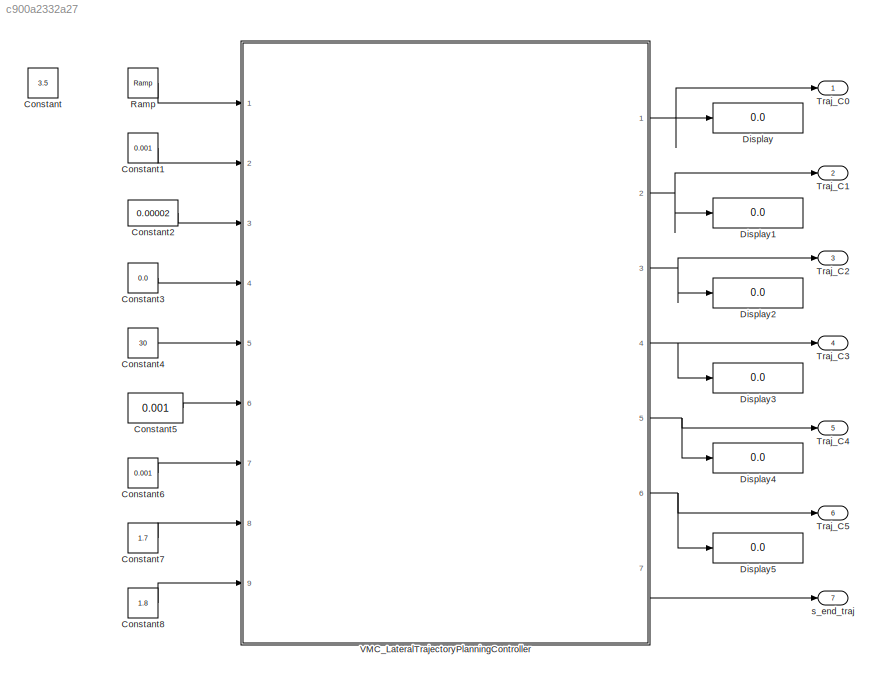
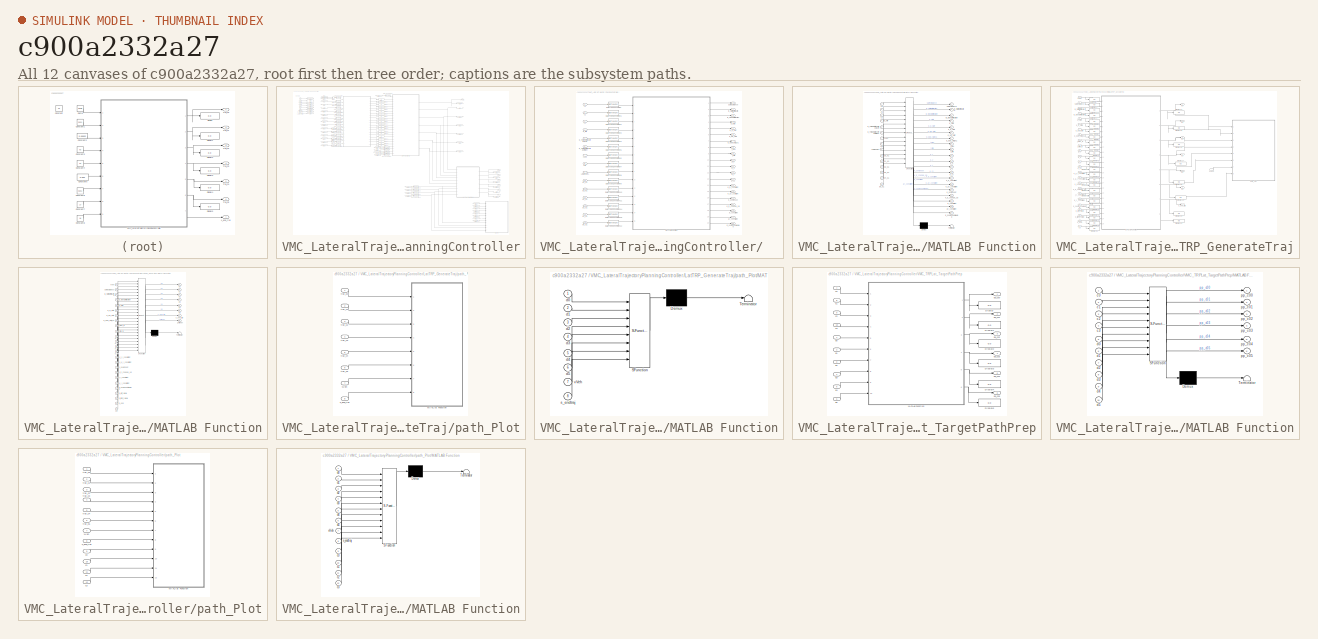
[diagram: thumbnail index - all 12 canvases of the model, root first then tree order]
MODEL slx_c900a2332a27
KIND model
CONFIG AbsTol = auto
CONFIG EnableMultiTasking = off
CONFIG FixedStep = 0.02
CONFIG MaxStep = auto
CONFIG MinStep = auto
CONFIG RelTol = 1e-3
CONFIG SampleTimeConstraint = Unconstrained
CONFIG Solver = FixedStepDiscrete
CONFIG SolverName = FixedStepDiscrete
CONFIG StartTime = 0.0
CONFIG StopTime = 10
BLOCK [Constant] Constant
  Value = 3.5
BLOCK [Constant] Constant1
  Value = 0.001
BLOCK [Constant] Constant2
  Value = 0.00002
BLOCK [Constant] Constant3
  Value = 0.0
BLOCK [Constant] Constant4
  Value = 30
BLOCK [Constant] Constant5
  Value = 0.001
BLOCK [Constant] Constant6
  Value = 0.001
BLOCK [Constant] Constant7
  Value = 1.7
BLOCK [Constant] Constant8
  Value = 1.8
BLOCK [Display] Display
  Decimation = 1
  Ports = [1]
BLOCK [Display] Display1
  Decimation = 1
  Ports = [1]
BLOCK [Display] Display2
  Decimation = 1
  Ports = [1]
BLOCK [Display] Display3
  Decimation = 1
  Ports = [1]
BLOCK [Display] Display4
  Decimation = 1
  Ports = [1]
BLOCK [Display] Display5
  Decimation = 1
  Ports = [1]
BLOCK [Reference] Ramp  REF=simulink/Sources/Ramp
  Ports = [0, 1]
  SourceBlock = simulink/Sources/Ramp
  SourceProductBaseCode = SL
  SourceProductName = Simulink
  SourceType = Ramp
BLOCK [Outport] Traj_C0
  IconDisplay = Port number
BLOCK [Outport] Traj_C1
  IconDisplay = Port number
  Port = 2
BLOCK [Outport] Traj_C2
  IconDisplay = Port number
  Port = 3
BLOCK [Outport] Traj_C3
  IconDisplay = Port number
  Port = 4
BLOCK [Outport] Traj_C4
  IconDisplay = Port number
  Port = 5
BLOCK [Outport] Traj_C5
  IconDisplay = Port number
  Port = 6
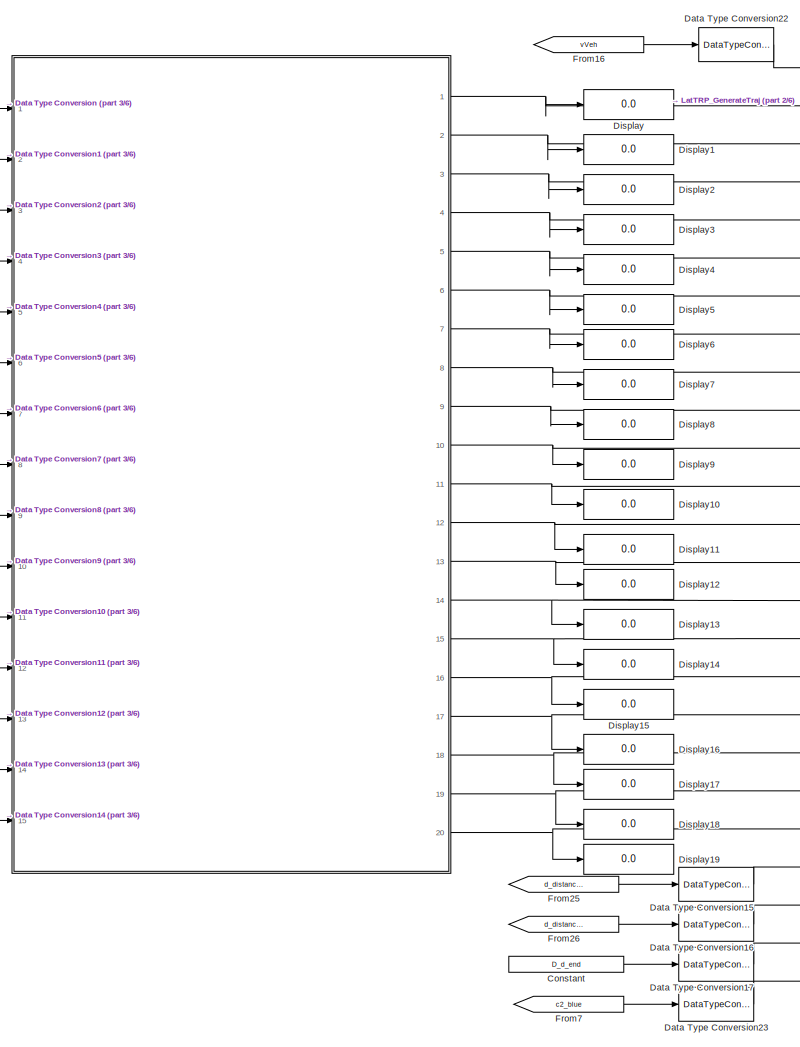
[diagram: VMC_LateralTrajectoryPlanningController - part 1/6, top center region]
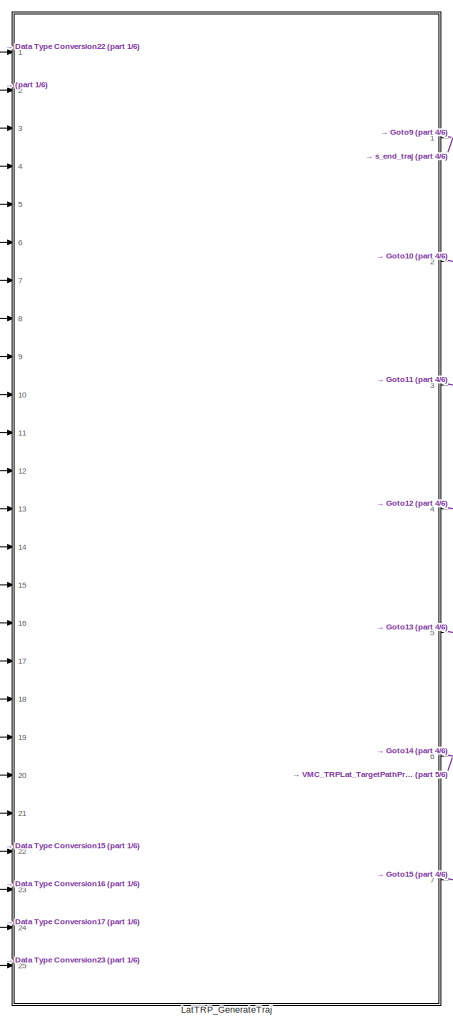
[diagram: VMC_LateralTrajectoryPlanningController - part 2/6, top center region]
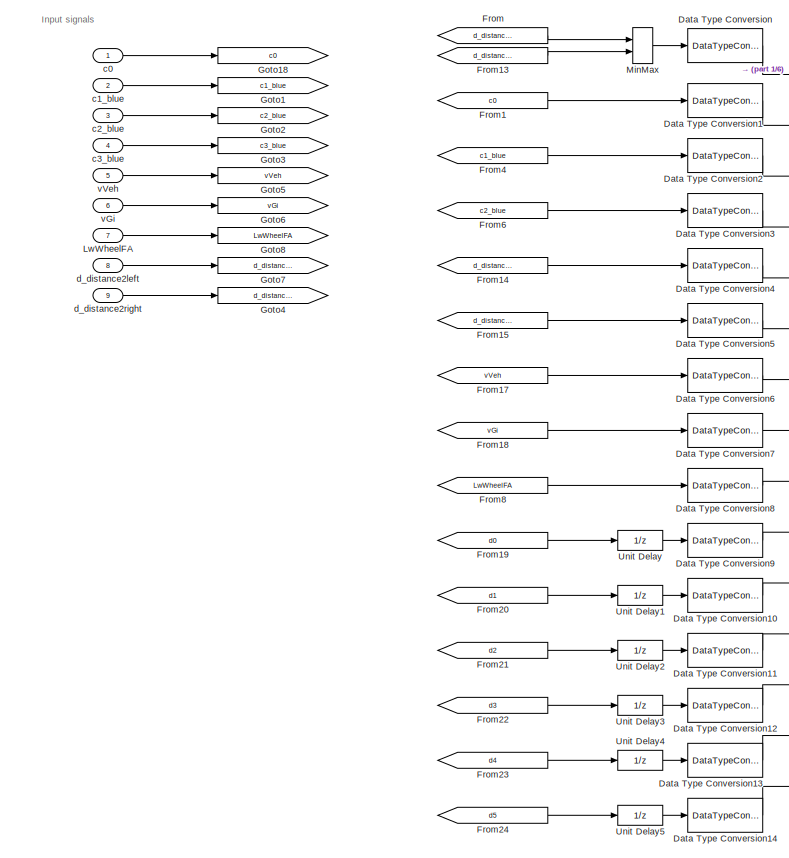
[diagram: VMC_LateralTrajectoryPlanningController - part 3/6, top left region]
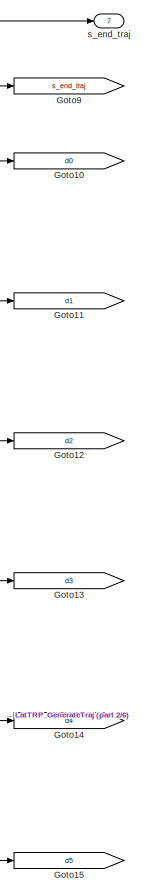
[diagram: VMC_LateralTrajectoryPlanningController - part 4/6, top right region]
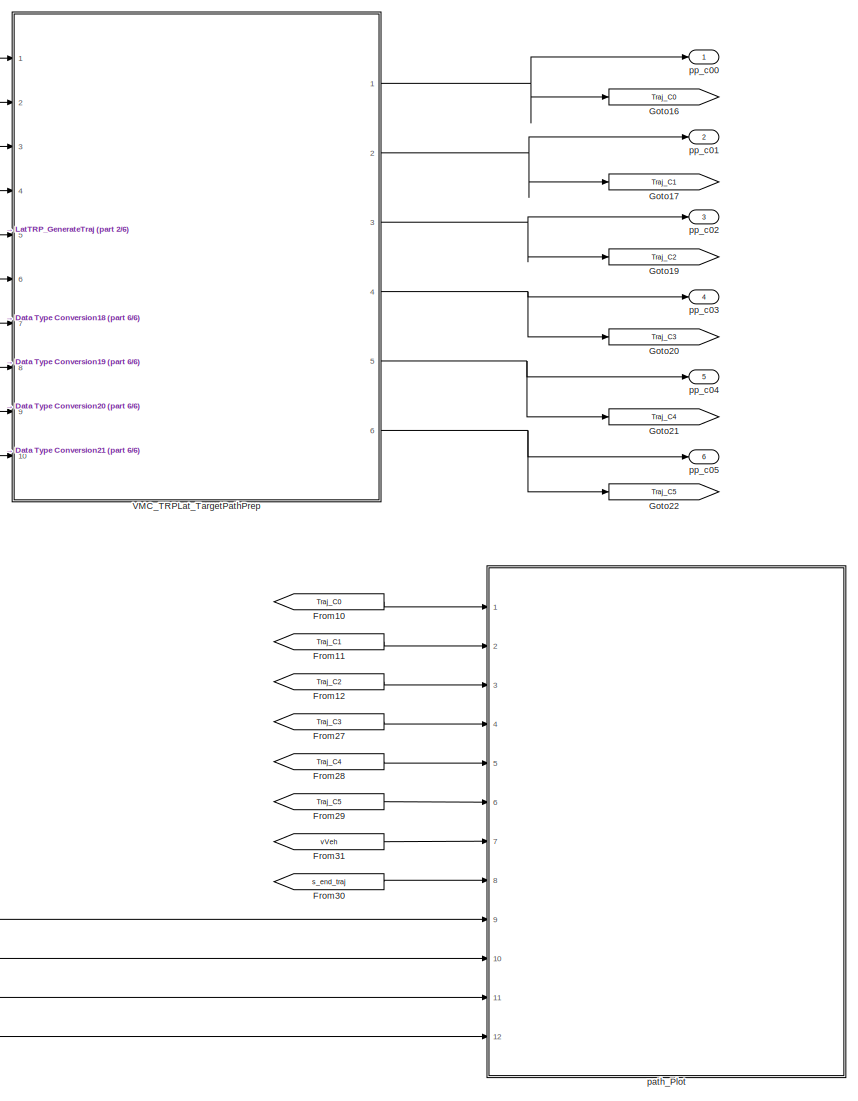
[diagram: VMC_LateralTrajectoryPlanningController - part 5/6, bottom right region]
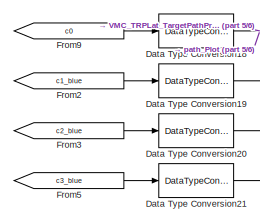
[diagram: VMC_LateralTrajectoryPlanningController - part 6/6, bottom center region]
BLOCK [SubSystem] VMC_LateralTrajectoryPlanningController
  Ports = [9, 7]
  RequestExecContextInheritance = off
BLOCK [SubSystem] VMC_LateralTrajectoryPlanningController/  
  Ports = [15, 20]
  RequestExecContextInheritance = off
BLOCK [Outport] VMC_LateralTrajectoryPlanningController/  /B_StartOptimization
  IconDisplay = Port number
  Port = 2
BLOCK [Outport] VMC_LateralTrajectoryPlanningController/  /B_StopOptimization
  IconDisplay = Port number
  Port = 3
BLOCK [DataTypeConversion] VMC_LateralTrajectoryPlanningController/  /Data Type Conversion
  OutDataTypeStr = double
  RndMeth = Floor
  SaturateOnIntegerOverflow = off
BLOCK [DataTypeConversion] VMC_LateralTrajectoryPlanningController/  /Data Type Conversion1
  OutDataTypeStr = double
  RndMeth = Floor
  SaturateOnIntegerOverflow = off
BLOCK [DataTypeConversion] VMC_LateralTrajectoryPlanningController/  /Data Type Conversion10
  OutDataTypeStr = double
  RndMeth = Floor
  SaturateOnIntegerOverflow = off
BLOCK [DataTypeConversion] VMC_LateralTrajectoryPlanningController/  /Data Type Conversion11
  OutDataTypeStr = double
  RndMeth = Floor
  SaturateOnIntegerOverflow = off
BLOCK [DataTypeConversion] VMC_LateralTrajectoryPlanningController/  /Data Type Conversion12
  OutDataTypeStr = double
  RndMeth = Floor
  SaturateOnIntegerOverflow = off
BLOCK [DataTypeConversion] VMC_LateralTrajectoryPlanningController/  /Data Type Conversion14
  OutDataTypeStr = double
  RndMeth = Floor
  SaturateOnIntegerOverflow = off
BLOCK [DataTypeConversion] VMC_LateralTrajectoryPlanningController/  /Data Type Conversion15
  OutDataTypeStr = double
  RndMeth = Floor
  SaturateOnIntegerOverflow = off
BLOCK [DataTypeConversion] VMC_LateralTrajectoryPlanningController/  /Data Type Conversion2
  OutDataTypeStr = double
  RndMeth = Floor
  SaturateOnIntegerOverflow = off
BLOCK [DataTypeConversion] VMC_LateralTrajectoryPlanningController/  /Data Type Conversion3
  OutDataTypeStr = double
  RndMeth = Floor
  SaturateOnIntegerOverflow = off
BLOCK [DataTypeConversion] VMC_LateralTrajectoryPlanningController/  /Data Type Conversion4
  OutDataTypeStr = double
  RndMeth = Floor
  SaturateOnIntegerOverflow = off
BLOCK [DataTypeConversion] VMC_LateralTrajectoryPlanningController/  /Data Type Conversion5
  OutDataTypeStr = double
  RndMeth = Floor
  SaturateOnIntegerOverflow = off
BLOCK [DataTypeConversion] VMC_LateralTrajectoryPlanningController/  /Data Type Conversion6
  OutDataTypeStr = double
  RndMeth = Floor
  SaturateOnIntegerOverflow = off
BLOCK [DataTypeConversion] VMC_LateralTrajectoryPlanningController/  /Data Type Conversion7
  OutDataTypeStr = double
  RndMeth = Floor
  SaturateOnIntegerOverflow = off
BLOCK [DataTypeConversion] VMC_LateralTrajectoryPlanningController/  /Data Type Conversion8
  OutDataTypeStr = double
  RndMeth = Floor
  SaturateOnIntegerOverflow = off
BLOCK [DataTypeConversion] VMC_LateralTrajectoryPlanningController/  /Data Type Conversion9
  OutDataTypeStr = double
  RndMeth = Floor
  SaturateOnIntegerOverflow = off
BLOCK [Inport] VMC_LateralTrajectoryPlanningController/  /LwWheelFA
  IconDisplay = Port number
  Port = 9
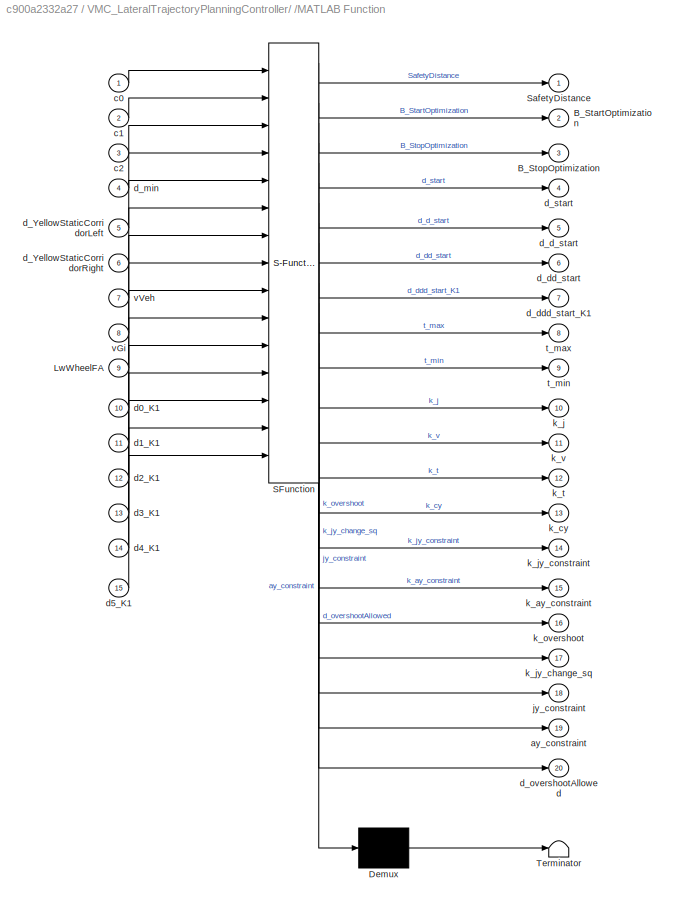
BLOCK [SubSystem] VMC_LateralTrajectoryPlanningController/  /MATLAB Function
  ErrorFcn = Stateflow.Translate.translate
  PermitHierarchicalResolution = ExplicitOnly
  Ports = [15, 20]
  RequestExecContextInheritance = off
  SFBlockType = MATLAB Function
  TreatAsAtomicUnit = on
BLOCK [Demux] VMC_LateralTrajectoryPlanningController/  /MATLAB Function/ Demux 
  Outputs = 1
  Ports = [1, 1]
BLOCK [S-Function] VMC_LateralTrajectoryPlanningController/  /MATLAB Function/ SFunction 
  EnableBusSupport = on
  FunctionName = sf_sfun
  Parameters = P_TRP_Lat_SafetyDistance_comfort,P_TRP_Lat_SafetyDistance_emergency,P_TRP_Lat_ay_constraint_comfort,P_TRP_Lat_ay_diff_max_emergency_CurX,P_TRP_Lat_ay_diff_max_emergency_CurY,P_TRP_Lat_dT,P_TRP_Lat_jy_constraint_comfort,P_TRP_Lat_k_ay_constraint_comfort,P_TRP_Lat_k_cy_Comfort,P_TRP_Lat_k_j_comfort,P_TRP_Lat_k_j_mod_d_comfort_CurX,P_TRP_Lat_k_j_mod_d_comfort_CurY,P_TRP_Lat_k_j_mod_d_min_comfort_CurX...<+897ch>
  PortCounts = [15 21]
  Ports = [15, 21]
  SFcnIsStateOwnerBlock = off
  SFunctionDeploymentMode = off
  Tag = Stateflow S-Function VMC_LateralTrajectoryPlanningControllerV04 4
BLOCK [Terminator] VMC_LateralTrajectoryPlanningController/  /MATLAB Function/ Terminator 
BLOCK [Outport] VMC_LateralTrajectoryPlanningController/  /MATLAB Function/B_StartOptimization
  IconDisplay = Port number
  Port = 2
BLOCK [Outport] VMC_LateralTrajectoryPlanningController/  /MATLAB Function/B_StopOptimization
  IconDisplay = Port number
  Port = 3
BLOCK [Inport] VMC_LateralTrajectoryPlanningController/  /MATLAB Function/LwWheelFA
  IconDisplay = Port number
  Port = 9
BLOCK [Outport] VMC_LateralTrajectoryPlanningController/  /MATLAB Function/SafetyDistance
  IconDisplay = Port number
BLOCK [Outport] VMC_LateralTrajectoryPlanningController/  /MATLAB Function/ay_constraint
  IconDisplay = Port number
  Port = 19
BLOCK [Inport] VMC_LateralTrajectoryPlanningController/  /MATLAB Function/c0
  IconDisplay = Port number
BLOCK [Inport] VMC_LateralTrajectoryPlanningController/  /MATLAB Function/c1
  IconDisplay = Port number
  Port = 2
BLOCK [Inport] VMC_LateralTrajectoryPlanningController/  /MATLAB Function/c2
  IconDisplay = Port number
  Port = 3
BLOCK [Inport] VMC_LateralTrajectoryPlanningController/  /MATLAB Function/d0_K1
  IconDisplay = Port number
  Port = 10
BLOCK [Inport] VMC_LateralTrajectoryPlanningController/  /MATLAB Function/d1_K1
  IconDisplay = Port number
  Port = 11
BLOCK [Inport] VMC_LateralTrajectoryPlanningController/  /MATLAB Function/d2_K1
  IconDisplay = Port number
  Port = 12
BLOCK [Inport] VMC_LateralTrajectoryPlanningController/  /MATLAB Function/d3_K1
  IconDisplay = Port number
  Port = 13
BLOCK [Inport] VMC_LateralTrajectoryPlanningController/  /MATLAB Function/d4_K1
  IconDisplay = Port number
  Port = 14
BLOCK [Inport] VMC_LateralTrajectoryPlanningController/  /MATLAB Function/d5_K1
  IconDisplay = Port number
  Port = 15
BLOCK [Inport] VMC_LateralTrajectoryPlanningController/  /MATLAB Function/d_YellowStaticCorridorLeft
  IconDisplay = Port number
  Port = 5
BLOCK [Inport] VMC_LateralTrajectoryPlanningController/  /MATLAB Function/d_YellowStaticCorridorRight
  IconDisplay = Port number
  Port = 6
BLOCK [Outport] VMC_LateralTrajectoryPlanningController/  /MATLAB Function/d_d_start
  IconDisplay = Port number
  Port = 5
BLOCK [Outport] VMC_LateralTrajectoryPlanningController/  /MATLAB Function/d_dd_start
  IconDisplay = Port number
  Port = 6
BLOCK [Outport] VMC_LateralTrajectoryPlanningController/  /MATLAB Function/d_ddd_start_K1
  IconDisplay = Port number
  Port = 7
BLOCK [Inport] VMC_LateralTrajectoryPlanningController/  /MATLAB Function/d_min
  IconDisplay = Port number
  Port = 4
BLOCK [Outport] VMC_LateralTrajectoryPlanningController/  /MATLAB Function/d_overshootAllowed
  IconDisplay = Port number
  Port = 20
BLOCK [Outport] VMC_LateralTrajectoryPlanningController/  /MATLAB Function/d_start
  IconDisplay = Port number
  Port = 4
BLOCK [Outport] VMC_LateralTrajectoryPlanningController/  /MATLAB Function/jy_constraint
  IconDisplay = Port number
  Port = 18
BLOCK [Outport] VMC_LateralTrajectoryPlanningController/  /MATLAB Function/k_ay_constraint
  IconDisplay = Port number
  Port = 15
BLOCK [Outport] VMC_LateralTrajectoryPlanningController/  /MATLAB Function/k_cy
  IconDisplay = Port number
  Port = 13
BLOCK [Outport] VMC_LateralTrajectoryPlanningController/  /MATLAB Function/k_j
  IconDisplay = Port number
  Port = 10
BLOCK [Outport] VMC_LateralTrajectoryPlanningController/  /MATLAB Function/k_jy_change_sq
  IconDisplay = Port number
  Port = 17
BLOCK [Outport] VMC_LateralTrajectoryPlanningController/  /MATLAB Function/k_jy_constraint
  IconDisplay = Port number
  Port = 14
BLOCK [Outport] VMC_LateralTrajectoryPlanningController/  /MATLAB Function/k_overshoot
  IconDisplay = Port number
  Port = 16
BLOCK [Outport] VMC_LateralTrajectoryPlanningController/  /MATLAB Function/k_t
  IconDisplay = Port number
  Port = 12
BLOCK [Outport] VMC_LateralTrajectoryPlanningController/  /MATLAB Function/k_v
  IconDisplay = Port number
  Port = 11
BLOCK [Outport] VMC_LateralTrajectoryPlanningController/  /MATLAB Function/t_max
  IconDisplay = Port number
  Port = 8
BLOCK [Outport] VMC_LateralTrajectoryPlanningController/  /MATLAB Function/t_min
  IconDisplay = Port number
  Port = 9
BLOCK [Inport] VMC_LateralTrajectoryPlanningController/  /MATLAB Function/vGi
  IconDisplay = Port number
  Port = 8
BLOCK [Inport] VMC_LateralTrajectoryPlanningController/  /MATLAB Function/vVeh
  IconDisplay = Port number
  Port = 7
BLOCK [Outport] VMC_LateralTrajectoryPlanningController/  /SafetyDistance
  IconDisplay = Port number
BLOCK [Outport] VMC_LateralTrajectoryPlanningController/  /ay_constraint
  IconDisplay = Port number
  Port = 19
BLOCK [Inport] VMC_LateralTrajectoryPlanningController/  /c0
  IconDisplay = Port number
  Port = 2
BLOCK [Inport] VMC_LateralTrajectoryPlanningController/  /c1
  IconDisplay = Port number
  Port = 3
BLOCK [Inport] VMC_LateralTrajectoryPlanningController/  /c2
  IconDisplay = Port number
  Port = 4
BLOCK [Inport] VMC_LateralTrajectoryPlanningController/  /d0_K1
  IconDisplay = Port number
  Port = 10
BLOCK [Inport] VMC_LateralTrajectoryPlanningController/  /d1_K1
  IconDisplay = Port number
  Port = 11
BLOCK [Inport] VMC_LateralTrajectoryPlanningController/  /d2_K1
  IconDisplay = Port number
  Port = 12
BLOCK [Inport] VMC_LateralTrajectoryPlanningController/  /d3_K1
  IconDisplay = Port number
  Port = 13
BLOCK [Inport] VMC_LateralTrajectoryPlanningController/  /d4_K1
  IconDisplay = Port number
  Port = 14
BLOCK [Inport] VMC_LateralTrajectoryPlanningController/  /d5_K1
  IconDisplay = Port number
  Port = 15
BLOCK [Inport] VMC_LateralTrajectoryPlanningController/  /d_YellowStaticCorridorLeft
  IconDisplay = Port number
  Port = 5
BLOCK [Inport] VMC_LateralTrajectoryPlanningController/  /d_YellowStaticCorridorRight
  IconDisplay = Port number
  Port = 6
BLOCK [Outport] VMC_LateralTrajectoryPlanningController/  /d_d_start
  IconDisplay = Port number
  Port = 5
BLOCK [Outport] VMC_LateralTrajectoryPlanningController/  /d_dd_start
  IconDisplay = Port number
  Port = 6
BLOCK [Outport] VMC_LateralTrajectoryPlanningController/  /d_ddd_start_k1
  IconDisplay = Port number
  Port = 7
BLOCK [Inport] VMC_LateralTrajectoryPlanningController/  /d_min
  IconDisplay = Port number
BLOCK [Outport] VMC_LateralTrajectoryPlanningController/  /d_overshootAllowed
  IconDisplay = Port number
  Port = 20
BLOCK [Outport] VMC_LateralTrajectoryPlanningController/  /d_start
  IconDisplay = Port number
  Port = 4
BLOCK [Outport] VMC_LateralTrajectoryPlanningController/  /jy_constraint
  IconDisplay = Port number
  Port = 18
BLOCK [Outport] VMC_LateralTrajectoryPlanningController/  /k_ay_costraint
  IconDisplay = Port number
  Port = 15
BLOCK [Outport] VMC_LateralTrajectoryPlanningController/  /k_cv
  IconDisplay = Port number
  Port = 13
BLOCK [Outport] VMC_LateralTrajectoryPlanningController/  /k_j
  IconDisplay = Port number
  Port = 10
BLOCK [Outport] VMC_LateralTrajectoryPlanningController/  /k_jy_change_sq
  IconDisplay = Port number
  Port = 17
BLOCK [Outport] VMC_LateralTrajectoryPlanningController/  /k_jy_constraint
  IconDisplay = Port number
  Port = 14
BLOCK [Outport] VMC_LateralTrajectoryPlanningController/  /k_overshoot
  IconDisplay = Port number
  Port = 16
BLOCK [Outport] VMC_LateralTrajectoryPlanningController/  /k_t
  IconDisplay = Port number
  Port = 12
BLOCK [Outport] VMC_LateralTrajectoryPlanningController/  /k_v
  IconDisplay = Port number
  Port = 11
BLOCK [Outport] VMC_LateralTrajectoryPlanningController/  /t_max
  IconDisplay = Port number
  Port = 8
BLOCK [Outport] VMC_LateralTrajectoryPlanningController/  /t_min
  IconDisplay = Port number
  Port = 9
BLOCK [Inport] VMC_LateralTrajectoryPlanningController/  /vGi
  IconDisplay = Port number
  Port = 8
BLOCK [Inport] VMC_LateralTrajectoryPlanningController/  /vVeh
  IconDisplay = Port number
  Port = 7
BLOCK [Constant] VMC_LateralTrajectoryPlanningController/Constant
  Value = D_d_end
BLOCK [DataTypeConversion] VMC_LateralTrajectoryPlanningController/Data Type Conversion
  OutDataTypeStr = double
  RndMeth = Floor
  SaturateOnIntegerOverflow = off
BLOCK [DataTypeConversion] VMC_LateralTrajectoryPlanningController/Data Type Conversion1
  OutDataTypeStr = double
  RndMeth = Floor
  SaturateOnIntegerOverflow = off
BLOCK [DataTypeConversion] VMC_LateralTrajectoryPlanningController/Data Type Conversion10
  OutDataTypeStr = double
  RndMeth = Floor
  SaturateOnIntegerOverflow = off
BLOCK [DataTypeConversion] VMC_LateralTrajectoryPlanningController/Data Type Conversion11
  OutDataTypeStr = double
  RndMeth = Floor
  SaturateOnIntegerOverflow = off
BLOCK [DataTypeConversion] VMC_LateralTrajectoryPlanningController/Data Type Conversion12
  OutDataTypeStr = double
  RndMeth = Floor
  SaturateOnIntegerOverflow = off
BLOCK [DataTypeConversion] VMC_LateralTrajectoryPlanningController/Data Type Conversion13
  OutDataTypeStr = double
  RndMeth = Floor
  SaturateOnIntegerOverflow = off
BLOCK [DataTypeConversion] VMC_LateralTrajectoryPlanningController/Data Type Conversion14
  OutDataTypeStr = double
  RndMeth = Floor
  SaturateOnIntegerOverflow = off
BLOCK [DataTypeConversion] VMC_LateralTrajectoryPlanningController/Data Type Conversion15
  OutDataTypeStr = double
  RndMeth = Floor
  SaturateOnIntegerOverflow = off
BLOCK [DataTypeConversion] VMC_LateralTrajectoryPlanningController/Data Type Conversion16
  OutDataTypeStr = double
  RndMeth = Floor
  SaturateOnIntegerOverflow = off
BLOCK [DataTypeConversion] VMC_LateralTrajectoryPlanningController/Data Type Conversion17
  OutDataTypeStr = double
  RndMeth = Floor
  SaturateOnIntegerOverflow = off
BLOCK [DataTypeConversion] VMC_LateralTrajectoryPlanningController/Data Type Conversion18
  OutDataTypeStr = double
  RndMeth = Floor
  SaturateOnIntegerOverflow = off
BLOCK [DataTypeConversion] VMC_LateralTrajectoryPlanningController/Data Type Conversion19
  OutDataTypeStr = double
  RndMeth = Floor
  SaturateOnIntegerOverflow = off
BLOCK [DataTypeConversion] VMC_LateralTrajectoryPlanningController/Data Type Conversion2
  OutDataTypeStr = double
  RndMeth = Floor
  SaturateOnIntegerOverflow = off
BLOCK [DataTypeConversion] VMC_LateralTrajectoryPlanningController/Data Type Conversion20
  OutDataTypeStr = double
  RndMeth = Floor
  SaturateOnIntegerOverflow = off
BLOCK [DataTypeConversion] VMC_LateralTrajectoryPlanningController/Data Type Conversion21
  OutDataTypeStr = double
  RndMeth = Floor
  SaturateOnIntegerOverflow = off
BLOCK [DataTypeConversion] VMC_LateralTrajectoryPlanningController/Data Type Conversion22
  OutDataTypeStr = double
  RndMeth = Floor
  SaturateOnIntegerOverflow = off
BLOCK [DataTypeConversion] VMC_LateralTrajectoryPlanningController/Data Type Conversion23
  OutDataTypeStr = double
  RndMeth = Floor
  SaturateOnIntegerOverflow = off
BLOCK [DataTypeConversion] VMC_LateralTrajectoryPlanningController/Data Type Conversion3
  OutDataTypeStr = double
  RndMeth = Floor
  SaturateOnIntegerOverflow = off
BLOCK [DataTypeConversion] VMC_LateralTrajectoryPlanningController/Data Type Conversion4
  OutDataTypeStr = double
  RndMeth = Floor
  SaturateOnIntegerOverflow = off
BLOCK [DataTypeConversion] VMC_LateralTrajectoryPlanningController/Data Type Conversion5
  OutDataTypeStr = double
  RndMeth = Floor
  SaturateOnIntegerOverflow = off
BLOCK [DataTypeConversion] VMC_LateralTrajectoryPlanningController/Data Type Conversion6
  OutDataTypeStr = double
  RndMeth = Floor
  SaturateOnIntegerOverflow = off
BLOCK [DataTypeConversion] VMC_LateralTrajectoryPlanningController/Data Type Conversion7
  OutDataTypeStr = double
  RndMeth = Floor
  SaturateOnIntegerOverflow = off
BLOCK [DataTypeConversion] VMC_LateralTrajectoryPlanningController/Data Type Conversion8
  OutDataTypeStr = double
  RndMeth = Floor
  SaturateOnIntegerOverflow = off
BLOCK [DataTypeConversion] VMC_LateralTrajectoryPlanningController/Data Type Conversion9
  OutDataTypeStr = double
  RndMeth = Floor
  SaturateOnIntegerOverflow = off
BLOCK [Display] VMC_LateralTrajectoryPlanningController/Display
  Decimation = 1
  Ports = [1]
BLOCK [Display] VMC_LateralTrajectoryPlanningController/Display1
  Decimation = 1
  Ports = [1]
BLOCK [Display] VMC_LateralTrajectoryPlanningController/Display10
  Decimation = 1
  Ports = [1]
BLOCK [Display] VMC_LateralTrajectoryPlanningController/Display11
  Decimation = 1
  Ports = [1]
BLOCK [Display] VMC_LateralTrajectoryPlanningController/Display12
  Decimation = 1
  Ports = [1]
BLOCK [Display] VMC_LateralTrajectoryPlanningController/Display13
  Decimation = 1
  Ports = [1]
BLOCK [Display] VMC_LateralTrajectoryPlanningController/Display14
  Decimation = 1
  Ports = [1]
BLOCK [Display] VMC_LateralTrajectoryPlanningController/Display15
  Decimation = 1
  Ports = [1]
BLOCK [Display] VMC_LateralTrajectoryPlanningController/Display16
  Decimation = 1
  Ports = [1]
BLOCK [Display] VMC_LateralTrajectoryPlanningController/Display17
  Decimation = 1
  Ports = [1]
BLOCK [Display] VMC_LateralTrajectoryPlanningController/Display18
  Decimation = 1
  Ports = [1]
BLOCK [Display] VMC_LateralTrajectoryPlanningController/Display19
  Decimation = 1
  Ports = [1]
BLOCK [Display] VMC_LateralTrajectoryPlanningController/Display2
  Decimation = 1
  Ports = [1]
BLOCK [Display] VMC_LateralTrajectoryPlanningController/Display3
  Decimation = 1
  Ports = [1]
BLOCK [Display] VMC_LateralTrajectoryPlanningController/Display4
  Decimation = 1
  Ports = [1]
BLOCK [Display] VMC_LateralTrajectoryPlanningController/Display5
  Decimation = 1
  Ports = [1]
BLOCK [Display] VMC_LateralTrajectoryPlanningController/Display6
  Decimation = 1
  Ports = [1]
BLOCK [Display] VMC_LateralTrajectoryPlanningController/Display7
  Decimation = 1
  Ports = [1]
BLOCK [Display] VMC_LateralTrajectoryPlanningController/Display8
  Decimation = 1
  Ports = [1]
BLOCK [Display] VMC_LateralTrajectoryPlanningController/Display9
  Decimation = 1
  Ports = [1]
BLOCK [From] VMC_LateralTrajectoryPlanningController/From
  GotoTag = d_distance2left
BLOCK [From] VMC_LateralTrajectoryPlanningController/From1
  GotoTag = c0
BLOCK [From] VMC_LateralTrajectoryPlanningController/From10
  GotoTag = Traj_C0
BLOCK [From] VMC_LateralTrajectoryPlanningController/From11
  GotoTag = Traj_C1
BLOCK [From] VMC_LateralTrajectoryPlanningController/From12
  GotoTag = Traj_C2
BLOCK [From] VMC_LateralTrajectoryPlanningController/From13
  GotoTag = d_distance2right
BLOCK [From] VMC_LateralTrajectoryPlanningController/From14
  GotoTag = d_distance2left
BLOCK [From] VMC_LateralTrajectoryPlanningController/From15
  GotoTag = d_distance2right
BLOCK [From] VMC_LateralTrajectoryPlanningController/From16
  GotoTag = vVeh
BLOCK [From] VMC_LateralTrajectoryPlanningController/From17
  GotoTag = vVeh
BLOCK [From] VMC_LateralTrajectoryPlanningController/From18
  GotoTag = vGi
BLOCK [From] VMC_LateralTrajectoryPlanningController/From19
  GotoTag = d0
BLOCK [From] VMC_LateralTrajectoryPlanningController/From2
  GotoTag = c1_blue
BLOCK [From] VMC_LateralTrajectoryPlanningController/From20
  GotoTag = d1
BLOCK [From] VMC_LateralTrajectoryPlanningController/From21
  GotoTag = d2
BLOCK [From] VMC_LateralTrajectoryPlanningController/From22
  GotoTag = d3
BLOCK [From] VMC_LateralTrajectoryPlanningController/From23
  GotoTag = d4
BLOCK [From] VMC_LateralTrajectoryPlanningController/From24
  GotoTag = d5
BLOCK [From] VMC_LateralTrajectoryPlanningController/From25
  GotoTag = d_distance2left
BLOCK [From] VMC_LateralTrajectoryPlanningController/From26
  GotoTag = d_distance2right
BLOCK [From] VMC_LateralTrajectoryPlanningController/From27
  GotoTag = Traj_C3
BLOCK [From] VMC_LateralTrajectoryPlanningController/From28
  GotoTag = Traj_C4
BLOCK [From] VMC_LateralTrajectoryPlanningController/From29
  GotoTag = Traj_C5
BLOCK [From] VMC_LateralTrajectoryPlanningController/From3
  GotoTag = c2_blue
BLOCK [From] VMC_LateralTrajectoryPlanningController/From30
  GotoTag = s_end_traj
BLOCK [From] VMC_LateralTrajectoryPlanningController/From31
  GotoTag = vVeh
BLOCK [From] VMC_LateralTrajectoryPlanningController/From4
  GotoTag = c1_blue
BLOCK [From] VMC_LateralTrajectoryPlanningController/From5
  GotoTag = c3_blue
BLOCK [From] VMC_LateralTrajectoryPlanningController/From6
  GotoTag = c2_blue
BLOCK [From] VMC_LateralTrajectoryPlanningController/From7
  GotoTag = c2_blue
BLOCK [From] VMC_LateralTrajectoryPlanningController/From8
  GotoTag = LwWheelFA
BLOCK [From] VMC_LateralTrajectoryPlanningController/From9
  GotoTag = c0
BLOCK [Goto] VMC_LateralTrajectoryPlanningController/Goto1
  GotoTag = c1_blue
BLOCK [Goto] VMC_LateralTrajectoryPlanningController/Goto10
  GotoTag = d0
BLOCK [Goto] VMC_LateralTrajectoryPlanningController/Goto11
  GotoTag = d1
BLOCK [Goto] VMC_LateralTrajectoryPlanningController/Goto12
  GotoTag = d2
BLOCK [Goto] VMC_LateralTrajectoryPlanningController/Goto13
  GotoTag = d3
BLOCK [Goto] VMC_LateralTrajectoryPlanningController/Goto14
  GotoTag = d4
BLOCK [Goto] VMC_LateralTrajectoryPlanningController/Goto15
  GotoTag = d5
BLOCK [Goto] VMC_LateralTrajectoryPlanningController/Goto16
  GotoTag = Traj_C0
BLOCK [Goto] VMC_LateralTrajectoryPlanningController/Goto17
  GotoTag = Traj_C1
BLOCK [Goto] VMC_LateralTrajectoryPlanningController/Goto18
  GotoTag = c0
BLOCK [Goto] VMC_LateralTrajectoryPlanningController/Goto19
  GotoTag = Traj_C2
BLOCK [Goto] VMC_LateralTrajectoryPlanningController/Goto2
  GotoTag = c2_blue
BLOCK [Goto] VMC_LateralTrajectoryPlanningController/Goto20
  GotoTag = Traj_C3
BLOCK [Goto] VMC_LateralTrajectoryPlanningController/Goto21
  GotoTag = Traj_C4
BLOCK [Goto] VMC_LateralTrajectoryPlanningController/Goto22
  GotoTag = Traj_C5
BLOCK [Goto] VMC_LateralTrajectoryPlanningController/Goto3
  GotoTag = c3_blue
BLOCK [Goto] VMC_LateralTrajectoryPlanningController/Goto4
  GotoTag = d_distance2right
BLOCK [Goto] VMC_LateralTrajectoryPlanningController/Goto5
  GotoTag = vVeh
BLOCK [Goto] VMC_LateralTrajectoryPlanningController/Goto6
  GotoTag = vGi
BLOCK [Goto] VMC_LateralTrajectoryPlanningController/Goto7
  GotoTag = d_distance2left
BLOCK [Goto] VMC_LateralTrajectoryPlanningController/Goto8
  GotoTag = LwWheelFA
BLOCK [Goto] VMC_LateralTrajectoryPlanningController/Goto9
  GotoTag = s_end_traj
BLOCK [SubSystem] VMC_LateralTrajectoryPlanningController/LatTRP_GenerateTraj
  Ports = [25, 7]
  RequestExecContextInheritance = off
BLOCK [Inport] VMC_LateralTrajectoryPlanningController/LatTRP_GenerateTraj/B_StartOptimization
  IconDisplay = Port number
  Port = 3
BLOCK [Inport] VMC_LateralTrajectoryPlanningController/LatTRP_GenerateTraj/B_StopOptimization
  IconDisplay = Port number
  Port = 4
BLOCK [Display] VMC_LateralTrajectoryPlanningController/LatTRP_GenerateTraj/Display
  Decimation = 1
  Ports = [1]
BLOCK [Display] VMC_LateralTrajectoryPlanningController/LatTRP_GenerateTraj/Display1
  Decimation = 1
  Ports = [1]
BLOCK [Display] VMC_LateralTrajectoryPlanningController/LatTRP_GenerateTraj/Display10
  Decimation = 1
  Ports = [1]
BLOCK [Display] VMC_LateralTrajectoryPlanningController/LatTRP_GenerateTraj/Display11
  Decimation = 1
  Ports = [1]
BLOCK [Display] VMC_LateralTrajectoryPlanningController/LatTRP_GenerateTraj/Display12
  Decimation = 1
  Ports = [1]
BLOCK [Display] VMC_LateralTrajectoryPlanningController/LatTRP_GenerateTraj/Display13
  Decimation = 1
  Ports = [1]
BLOCK [Display] VMC_LateralTrajectoryPlanningController/LatTRP_GenerateTraj/Display14
  Decimation = 1
  Ports = [1]
BLOCK [Display] VMC_LateralTrajectoryPlanningController/LatTRP_GenerateTraj/Display15
  Decimation = 1
  Ports = [1]
BLOCK [Display] VMC_LateralTrajectoryPlanningController/LatTRP_GenerateTraj/Display16
  Decimation = 1
  Ports = [1]
BLOCK [Display] VMC_LateralTrajectoryPlanningController/LatTRP_GenerateTraj/Display17
  Decimation = 1
  Ports = [1]
BLOCK [Display] VMC_LateralTrajectoryPlanningController/LatTRP_GenerateTraj/Display18
  Decimation = 1
  Ports = [1]
BLOCK [Display] VMC_LateralTrajectoryPlanningController/LatTRP_GenerateTraj/Display19
  Decimation = 1
  Ports = [1]
BLOCK [Display] VMC_LateralTrajectoryPlanningController/LatTRP_GenerateTraj/Display2
  Decimation = 1
  Ports = [1]
BLOCK [Display] VMC_LateralTrajectoryPlanningController/LatTRP_GenerateTraj/Display20
  Decimation = 1
  Ports = [1]
BLOCK [Display] VMC_LateralTrajectoryPlanningController/LatTRP_GenerateTraj/Display21
  Decimation = 1
  Ports = [1]
BLOCK [Display] VMC_LateralTrajectoryPlanningController/LatTRP_GenerateTraj/Display22
  Decimation = 1
  Ports = [1]
BLOCK [Display] VMC_LateralTrajectoryPlanningController/LatTRP_GenerateTraj/Display23
  Decimation = 1
  Ports = [1]
BLOCK [Display] VMC_LateralTrajectoryPlanningController/LatTRP_GenerateTraj/Display24
  Decimation = 1
  Ports = [1]
BLOCK [Display] VMC_LateralTrajectoryPlanningController/LatTRP_GenerateTraj/Display25
  Decimation = 1
  Ports = [1]
BLOCK [Display] VMC_LateralTrajectoryPlanningController/LatTRP_GenerateTraj/Display26
  Decimation = 1
  Ports = [1]
BLOCK [Display] VMC_LateralTrajectoryPlanningController/LatTRP_GenerateTraj/Display27
  Decimation = 1
  Ports = [1]
BLOCK [Display] VMC_LateralTrajectoryPlanningController/LatTRP_GenerateTraj/Display28
  Decimation = 1
  Ports = [1]
BLOCK [Display] VMC_LateralTrajectoryPlanningController/LatTRP_GenerateTraj/Display29
  Decimation = 1
  Ports = [1]
BLOCK [Display] VMC_LateralTrajectoryPlanningController/LatTRP_GenerateTraj/Display3
  Decimation = 1
  Ports = [1]
BLOCK [Display] VMC_LateralTrajectoryPlanningController/LatTRP_GenerateTraj/Display30
  Decimation = 1
  Ports = [1]
BLOCK [Display] VMC_LateralTrajectoryPlanningController/LatTRP_GenerateTraj/Display31
  Decimation = 1
  Ports = [1]
BLOCK [Display] VMC_LateralTrajectoryPlanningController/LatTRP_GenerateTraj/Display32
  Decimation = 1
  Ports = [1]
BLOCK [Display] VMC_LateralTrajectoryPlanningController/LatTRP_GenerateTraj/Display4
  Decimation = 1
  Ports = [1]
BLOCK [Display] VMC_LateralTrajectoryPlanningController/LatTRP_GenerateTraj/Display5
  Decimation = 1
  Ports = [1]
BLOCK [Display] VMC_LateralTrajectoryPlanningController/LatTRP_GenerateTraj/Display6
  Decimation = 1
  Ports = [1]
BLOCK [Display] VMC_LateralTrajectoryPlanningController/LatTRP_GenerateTraj/Display7
  Decimation = 1
  Ports = [1]
BLOCK [Display] VMC_LateralTrajectoryPlanningController/LatTRP_GenerateTraj/Display8
  Decimation = 1
  Ports = [1]
BLOCK [Display] VMC_LateralTrajectoryPlanningController/LatTRP_GenerateTraj/Display9
  Decimation = 1
  Ports = [1]
BLOCK [SubSystem] VMC_LateralTrajectoryPlanningController/LatTRP_GenerateTraj/MATLAB Function
  ErrorFcn = Stateflow.Translate.translate
  PermitHierarchicalResolution = ExplicitOnly
  Ports = [25, 8]
  RequestExecContextInheritance = off
  SFBlockType = MATLAB Function
  TreatAsAtomicUnit = on
BLOCK [Demux] VMC_LateralTrajectoryPlanningController/LatTRP_GenerateTraj/MATLAB Function/ Demux 
  Outputs = 1
  Ports = [1, 1]
BLOCK [S-Function] VMC_LateralTrajectoryPlanningController/LatTRP_GenerateTraj/MATLAB Function/ SFunction 
  EnableBusSupport = on
  FunctionName = sf_sfun
  Parameters = P_TRP_Lat_dT,P_Vehicle_width,P_optimizer_interations,P_vVeh_min_TrajCalc
  PortCounts = [25 9]
  Ports = [25, 9]
  SFcnIsStateOwnerBlock = off
  SFunctionDeploymentMode = off
  Tag = Stateflow S-Function VMC_LateralTrajectoryPlanningControllerV04 5
BLOCK [Terminator] VMC_LateralTrajectoryPlanningController/LatTRP_GenerateTraj/MATLAB Function/ Terminator 
BLOCK [Inport] VMC_LateralTrajectoryPlanningController/LatTRP_GenerateTraj/MATLAB Function/B_StartOptimization
  IconDisplay = Port number
  Port = 3
BLOCK [Inport] VMC_LateralTrajectoryPlanningController/LatTRP_GenerateTraj/MATLAB Function/B_StopOptimization
  IconDisplay = Port number
  Port = 4
BLOCK [Inport] VMC_LateralTrajectoryPlanningController/LatTRP_GenerateTraj/MATLAB Function/SafetyDistance
  IconDisplay = Port number
  Port = 2
BLOCK [Inport] VMC_LateralTrajectoryPlanningController/LatTRP_GenerateTraj/MATLAB Function/a_y_constraint
  IconDisplay = Port number
  Port = 20
BLOCK [Inport] VMC_LateralTrajectoryPlanningController/LatTRP_GenerateTraj/MATLAB Function/c2
  IconDisplay = Port number
  Port = 25
BLOCK [Outport] VMC_LateralTrajectoryPlanningController/LatTRP_GenerateTraj/MATLAB Function/d0
  IconDisplay = Port number
BLOCK [Outport] VMC_LateralTrajectoryPlanningController/LatTRP_GenerateTraj/MATLAB Function/d1
  IconDisplay = Port number
  Port = 2
BLOCK [Outport] VMC_LateralTrajectoryPlanningController/LatTRP_GenerateTraj/MATLAB Function/d2
  IconDisplay = Port number
  Port = 3
BLOCK [Outport] VMC_LateralTrajectoryPlanningController/LatTRP_GenerateTraj/MATLAB Function/d3
  IconDisplay = Port number
  Port = 4
BLOCK [Outport] VMC_LateralTrajectoryPlanningController/LatTRP_GenerateTraj/MATLAB Function/d4
  IconDisplay = Port number
  Port = 5
BLOCK [Outport] VMC_LateralTrajectoryPlanningController/LatTRP_GenerateTraj/MATLAB Function/d5
  IconDisplay = Port number
  Port = 6
BLOCK [Inport] VMC_LateralTrajectoryPlanningController/LatTRP_GenerateTraj/MATLAB Function/d_d_start
  IconDisplay = Port number
  Port = 6
BLOCK [Inport] VMC_LateralTrajectoryPlanningController/LatTRP_GenerateTraj/MATLAB Function/d_dd_start
  IconDisplay = Port number
  Port = 7
BLOCK [Inport] VMC_LateralTrajectoryPlanningController/LatTRP_GenerateTraj/MATLAB Function/d_ddd_start_K1
  IconDisplay = Port number
  Port = 8
BLOCK [Inport] VMC_LateralTrajectoryPlanningController/LatTRP_GenerateTraj/MATLAB Function/d_end
  IconDisplay = Port number
  Port = 24
BLOCK [Inport] VMC_LateralTrajectoryPlanningController/LatTRP_GenerateTraj/MATLAB Function/d_left_yellow
  IconDisplay = Port number
  Port = 22
BLOCK [Inport] VMC_LateralTrajectoryPlanningController/LatTRP_GenerateTraj/MATLAB Function/d_overshootAllowed
  IconDisplay = Port number
  Port = 21
BLOCK [Inport] VMC_LateralTrajectoryPlanningController/LatTRP_GenerateTraj/MATLAB Function/d_right_yellow
  IconDisplay = Port number
  Port = 23
BLOCK [Inport] VMC_LateralTrajectoryPlanningController/LatTRP_GenerateTraj/MATLAB Function/d_start
  IconDisplay = Port number
  Port = 5
BLOCK [Inport] VMC_LateralTrajectoryPlanningController/LatTRP_GenerateTraj/MATLAB Function/j_y_constraint
  IconDisplay = Port number
  Port = 19
BLOCK [Inport] VMC_LateralTrajectoryPlanningController/LatTRP_GenerateTraj/MATLAB Function/k_a_y_constraint
  IconDisplay = Port number
  Port = 16
BLOCK [Inport] VMC_LateralTrajectoryPlanningController/LatTRP_GenerateTraj/MATLAB Function/k_cy
  IconDisplay = Port number
  Port = 14
BLOCK [Inport] VMC_LateralTrajectoryPlanningController/LatTRP_GenerateTraj/MATLAB Function/k_j
  IconDisplay = Port number
  Port = 11
BLOCK [Inport] VMC_LateralTrajectoryPlanningController/LatTRP_GenerateTraj/MATLAB Function/k_j_y_constraint
  IconDisplay = Port number
  Port = 15
BLOCK [Inport] VMC_LateralTrajectoryPlanningController/LatTRP_GenerateTraj/MATLAB Function/k_jy_change_sq
  IconDisplay = Port number
  Port = 18
BLOCK [Inport] VMC_LateralTrajectoryPlanningController/LatTRP_GenerateTraj/MATLAB Function/k_overshoot
  IconDisplay = Port number
  Port = 17
BLOCK [Inport] VMC_LateralTrajectoryPlanningController/LatTRP_GenerateTraj/MATLAB Function/k_t
  IconDisplay = Port number
  Port = 13
BLOCK [Inport] VMC_LateralTrajectoryPlanningController/LatTRP_GenerateTraj/MATLAB Function/k_v
  IconDisplay = Port number
  Port = 12
BLOCK [Outport] VMC_LateralTrajectoryPlanningController/LatTRP_GenerateTraj/MATLAB Function/s_end_traj
  IconDisplay = Port number
  Port = 7
BLOCK [Outport] VMC_LateralTrajectoryPlanningController/LatTRP_GenerateTraj/MATLAB Function/t_Winner
  IconDisplay = Port number
  Port = 8
BLOCK [Inport] VMC_LateralTrajectoryPlanningController/LatTRP_GenerateTraj/MATLAB Function/t_max_in
  IconDisplay = Port number
  Port = 9
BLOCK [Inport] VMC_LateralTrajectoryPlanningController/LatTRP_GenerateTraj/MATLAB Function/t_min_in
  IconDisplay = Port number
  Port = 10
BLOCK [Inport] VMC_LateralTrajectoryPlanningController/LatTRP_GenerateTraj/MATLAB Function/vVeh
  IconDisplay = Port number
BLOCK [Inport] VMC_LateralTrajectoryPlanningController/LatTRP_GenerateTraj/SafetyDistance
  IconDisplay = Port number
  Port = 2
BLOCK [Inport] VMC_LateralTrajectoryPlanningController/LatTRP_GenerateTraj/a_y_constraint
  IconDisplay = Port number
  Port = 20
BLOCK [Inport] VMC_LateralTrajectoryPlanningController/LatTRP_GenerateTraj/c2
  IconDisplay = Port number
  Port = 25
BLOCK [Outport] VMC_LateralTrajectoryPlanningController/LatTRP_GenerateTraj/d0
  IconDisplay = Port number
  Port = 2
BLOCK [Outport] VMC_LateralTrajectoryPlanningController/LatTRP_GenerateTraj/d1
  IconDisplay = Port number
  Port = 3
BLOCK [Outport] VMC_LateralTrajectoryPlanningController/LatTRP_GenerateTraj/d2
  IconDisplay = Port number
  Port = 4
BLOCK [Outport] VMC_LateralTrajectoryPlanningController/LatTRP_GenerateTraj/d3
  IconDisplay = Port number
  Port = 5
BLOCK [Outport] VMC_LateralTrajectoryPlanningController/LatTRP_GenerateTraj/d4
  IconDisplay = Port number
  Port = 6
BLOCK [Outport] VMC_LateralTrajectoryPlanningController/LatTRP_GenerateTraj/d5
  IconDisplay = Port number
  Port = 7
BLOCK [Inport] VMC_LateralTrajectoryPlanningController/LatTRP_GenerateTraj/d_d_start
  IconDisplay = Port number
  Port = 6
BLOCK [Inport] VMC_LateralTrajectoryPlanningController/LatTRP_GenerateTraj/d_dd_start
  IconDisplay = Port number
  Port = 7
BLOCK [Inport] VMC_LateralTrajectoryPlanningController/LatTRP_GenerateTraj/d_ddd_start_K1
  IconDisplay = Port number
  Port = 8
BLOCK [Inport] VMC_LateralTrajectoryPlanningController/LatTRP_GenerateTraj/d_end
  IconDisplay = Port number
  Port = 24
BLOCK [Inport] VMC_LateralTrajectoryPlanningController/LatTRP_GenerateTraj/d_left_yellow
  IconDisplay = Port number
  Port = 22
BLOCK [Inport] VMC_LateralTrajectoryPlanningController/LatTRP_GenerateTraj/d_overshootAllowed
  IconDisplay = Port number
  Port = 21
BLOCK [Inport] VMC_LateralTrajectoryPlanningController/LatTRP_GenerateTraj/d_right_yellow
  IconDisplay = Port number
  Port = 23
BLOCK [Inport] VMC_LateralTrajectoryPlanningController/LatTRP_GenerateTraj/d_start
  IconDisplay = Port number
  Port = 5
BLOCK [Inport] VMC_LateralTrajectoryPlanningController/LatTRP_GenerateTraj/j_y_constraint
  IconDisplay = Port number
  Port = 19
BLOCK [Inport] VMC_LateralTrajectoryPlanningController/LatTRP_GenerateTraj/k_a_y_constraint
  IconDisplay = Port number
  Port = 16
BLOCK [Inport] VMC_LateralTrajectoryPlanningController/LatTRP_GenerateTraj/k_cv
  IconDisplay = Port number
  Port = 14
BLOCK [Inport] VMC_LateralTrajectoryPlanningController/LatTRP_GenerateTraj/k_j
  IconDisplay = Port number
  Port = 11
BLOCK [Inport] VMC_LateralTrajectoryPlanningController/LatTRP_GenerateTraj/k_j_y_constraint
  IconDisplay = Port number
  Port = 15
BLOCK [Inport] VMC_LateralTrajectoryPlanningController/LatTRP_GenerateTraj/k_jy_change_sq
  IconDisplay = Port number
  Port = 18
BLOCK [Inport] VMC_LateralTrajectoryPlanningController/LatTRP_GenerateTraj/k_overshoot
  IconDisplay = Port number
  Port = 17
BLOCK [Inport] VMC_LateralTrajectoryPlanningController/LatTRP_GenerateTraj/k_t
  IconDisplay = Port number
  Port = 13
BLOCK [Inport] VMC_LateralTrajectoryPlanningController/LatTRP_GenerateTraj/k_v
  IconDisplay = Port number
  Port = 12
BLOCK [SubSystem] VMC_LateralTrajectoryPlanningController/LatTRP_GenerateTraj/path_Plot
  Commented = on
  Ports = [8]
  RequestExecContextInheritance = off
BLOCK [SubSystem] VMC_LateralTrajectoryPlanningController/LatTRP_GenerateTraj/path_Plot/MATLAB Function
  ErrorFcn = Stateflow.Translate.translate
  PermitHierarchicalResolution = ExplicitOnly
  Ports = [8]
  RequestExecContextInheritance = off
  SFBlockType = MATLAB Function
  TreatAsAtomicUnit = on
BLOCK [Demux] VMC_LateralTrajectoryPlanningController/LatTRP_GenerateTraj/path_Plot/MATLAB Function/ Demux 
  Outputs = 1
  Ports = [1, 1]
BLOCK [S-Function] VMC_LateralTrajectoryPlanningController/LatTRP_GenerateTraj/path_Plot/MATLAB Function/ SFunction 
  EnableBusSupport = on
  FunctionName = sf_sfun
  PortCounts = [8 1]
  Ports = [8, 1]
  SFcnIsStateOwnerBlock = off
  SFunctionDeploymentMode = off
  Tag = Stateflow S-Function VMC_LateralTrajectoryPlanningControllerV04 1
BLOCK [Terminator] VMC_LateralTrajectoryPlanningController/LatTRP_GenerateTraj/path_Plot/MATLAB Function/ Terminator 
BLOCK [Inport] VMC_LateralTrajectoryPlanningController/LatTRP_GenerateTraj/path_Plot/MATLAB Function/d0
  IconDisplay = Port number
BLOCK [Inport] VMC_LateralTrajectoryPlanningController/LatTRP_GenerateTraj/path_Plot/MATLAB Function/d1
  IconDisplay = Port number
  Port = 2
BLOCK [Inport] VMC_LateralTrajectoryPlanningController/LatTRP_GenerateTraj/path_Plot/MATLAB Function/d2
  IconDisplay = Port number
  Port = 3
BLOCK [Inport] VMC_LateralTrajectoryPlanningController/LatTRP_GenerateTraj/path_Plot/MATLAB Function/d3
  IconDisplay = Port number
  Port = 4
BLOCK [Inport] VMC_LateralTrajectoryPlanningController/LatTRP_GenerateTraj/path_Plot/MATLAB Function/d4
  IconDisplay = Port number
  Port = 5
BLOCK [Inport] VMC_LateralTrajectoryPlanningController/LatTRP_GenerateTraj/path_Plot/MATLAB Function/d5
  IconDisplay = Port number
  Port = 6
BLOCK [Inport] VMC_LateralTrajectoryPlanningController/LatTRP_GenerateTraj/path_Plot/MATLAB Function/s_endtraj
  IconDisplay = Port number
  Port = 8
BLOCK [Inport] VMC_LateralTrajectoryPlanningController/LatTRP_GenerateTraj/path_Plot/MATLAB Function/vVeh
  IconDisplay = Port number
  Port = 7
BLOCK [Inport] VMC_LateralTrajectoryPlanningController/LatTRP_GenerateTraj/path_Plot/s_end_traj
  IconDisplay = Port number
  Port = 8
BLOCK [Inport] VMC_LateralTrajectoryPlanningController/LatTRP_GenerateTraj/path_Plot/traj_c0
  IconDisplay = Port number
BLOCK [Inport] VMC_LateralTrajectoryPlanningController/LatTRP_GenerateTraj/path_Plot/traj_c1
  IconDisplay = Port number
  Port = 2
BLOCK [Inport] VMC_LateralTrajectoryPlanningController/LatTRP_GenerateTraj/path_Plot/traj_c2
  IconDisplay = Port number
  Port = 3
BLOCK [Inport] VMC_LateralTrajectoryPlanningController/LatTRP_GenerateTraj/path_Plot/traj_c3 
  IconDisplay = Port number
  Port = 4
BLOCK [Inport] VMC_LateralTrajectoryPlanningController/LatTRP_GenerateTraj/path_Plot/traj_c4
  IconDisplay = Port number
  Port = 5
BLOCK [Inport] VMC_LateralTrajectoryPlanningController/LatTRP_GenerateTraj/path_Plot/traj_c5
  IconDisplay = Port number
  Port = 6
BLOCK [Inport] VMC_LateralTrajectoryPlanningController/LatTRP_GenerateTraj/path_Plot/vVeh
  IconDisplay = Port number
  Port = 7
BLOCK [Outport] VMC_LateralTrajectoryPlanningController/LatTRP_GenerateTraj/s_end_traj
  IconDisplay = Port number
BLOCK [Inport] VMC_LateralTrajectoryPlanningController/LatTRP_GenerateTraj/t_max_in
  IconDisplay = Port number
  Port = 9
BLOCK [Inport] VMC_LateralTrajectoryPlanningController/LatTRP_GenerateTraj/t_min_in
  IconDisplay = Port number
  Port = 10
BLOCK [Inport] VMC_LateralTrajectoryPlanningController/LatTRP_GenerateTraj/vVeh
  IconDisplay = Port number
BLOCK [InportShadow] VMC_LateralTrajectoryPlanningController/LatTRP_GenerateTraj/vVeh1
  IconDisplay = Port number
BLOCK [Inport] VMC_LateralTrajectoryPlanningController/LwWheelFA
  IconDisplay = Port number
  Port = 7
BLOCK [MinMax] VMC_LateralTrajectoryPlanningController/MinMax
  InputSameDT = off
  Inputs = 2
  Ports = [2, 1]
  SaturateOnIntegerOverflow = off
BLOCK [UnitDelay] VMC_LateralTrajectoryPlanningController/Unit Delay
  InputProcessing = Elements as channels (sample based)
  SampleTime = -1
BLOCK [UnitDelay] VMC_LateralTrajectoryPlanningController/Unit Delay1
  InputProcessing = Elements as channels (sample based)
  SampleTime = -1
BLOCK [UnitDelay] VMC_LateralTrajectoryPlanningController/Unit Delay2
  InputProcessing = Elements as channels (sample based)
  SampleTime = -1
BLOCK [UnitDelay] VMC_LateralTrajectoryPlanningController/Unit Delay3
  InputProcessing = Elements as channels (sample based)
  SampleTime = -1
BLOCK [UnitDelay] VMC_LateralTrajectoryPlanningController/Unit Delay4
  InputProcessing = Elements as channels (sample based)
  SampleTime = -1
BLOCK [UnitDelay] VMC_LateralTrajectoryPlanningController/Unit Delay5
  InputProcessing = Elements as channels (sample based)
  SampleTime = -1
BLOCK [SubSystem] VMC_LateralTrajectoryPlanningController/VMC_TRPLat_TargetPathPrep
  Ports = [10, 6]
  RequestExecContextInheritance = off
BLOCK [Display] VMC_LateralTrajectoryPlanningController/VMC_TRPLat_TargetPathPrep/Display
  Decimation = 1
  Ports = [1]
BLOCK [Display] VMC_LateralTrajectoryPlanningController/VMC_TRPLat_TargetPathPrep/Display1
  Decimation = 1
  Ports = [1]
BLOCK [Display] VMC_LateralTrajectoryPlanningController/VMC_TRPLat_TargetPathPrep/Display2
  Decimation = 1
  Ports = [1]
BLOCK [Display] VMC_LateralTrajectoryPlanningController/VMC_TRPLat_TargetPathPrep/Display3
  Decimation = 1
  Ports = [1]
BLOCK [Display] VMC_LateralTrajectoryPlanningController/VMC_TRPLat_TargetPathPrep/Display4
  Decimation = 1
  Ports = [1]
BLOCK [Display] VMC_LateralTrajectoryPlanningController/VMC_TRPLat_TargetPathPrep/Display5
  Decimation = 1
  Ports = [1]
BLOCK [SubSystem] VMC_LateralTrajectoryPlanningController/VMC_TRPLat_TargetPathPrep/MATLAB Function
  ErrorFcn = Stateflow.Translate.translate
  PermitHierarchicalResolution = ExplicitOnly
  Ports = [10, 6]
  RequestExecContextInheritance = off
  SFBlockType = MATLAB Function
  TreatAsAtomicUnit = on
BLOCK [Demux] VMC_LateralTrajectoryPlanningController/VMC_TRPLat_TargetPathPrep/MATLAB Function/ Demux 
  Outputs = 1
  Ports = [1, 1]
BLOCK [S-Function] VMC_LateralTrajectoryPlanningController/VMC_TRPLat_TargetPathPrep/MATLAB Function/ SFunction 
  EnableBusSupport = on
  FunctionName = sf_sfun
  PortCounts = [10 7]
  Ports = [10, 7]
  SFcnIsStateOwnerBlock = off
  SFunctionDeploymentMode = off
  Tag = Stateflow S-Function VMC_LateralTrajectoryPlanningControllerV04 6
BLOCK [Terminator] VMC_LateralTrajectoryPlanningController/VMC_TRPLat_TargetPathPrep/MATLAB Function/ Terminator 
BLOCK [Inport] VMC_LateralTrajectoryPlanningController/VMC_TRPLat_TargetPathPrep/MATLAB Function/c0
  IconDisplay = Port number
BLOCK [Inport] VMC_LateralTrajectoryPlanningController/VMC_TRPLat_TargetPathPrep/MATLAB Function/c1
  IconDisplay = Port number
  Port = 2
BLOCK [Inport] VMC_LateralTrajectoryPlanningController/VMC_TRPLat_TargetPathPrep/MATLAB Function/c2
  IconDisplay = Port number
  Port = 3
BLOCK [Inport] VMC_LateralTrajectoryPlanningController/VMC_TRPLat_TargetPathPrep/MATLAB Function/c3
  IconDisplay = Port number
  Port = 4
BLOCK [Inport] VMC_LateralTrajectoryPlanningController/VMC_TRPLat_TargetPathPrep/MATLAB Function/d0
  IconDisplay = Port number
  Port = 5
BLOCK [Inport] VMC_LateralTrajectoryPlanningController/VMC_TRPLat_TargetPathPrep/MATLAB Function/d1
  IconDisplay = Port number
  Port = 6
BLOCK [Inport] VMC_LateralTrajectoryPlanningController/VMC_TRPLat_TargetPathPrep/MATLAB Function/d2
  IconDisplay = Port number
  Port = 7
BLOCK [Inport] VMC_LateralTrajectoryPlanningController/VMC_TRPLat_TargetPathPrep/MATLAB Function/d3
  IconDisplay = Port number
  Port = 8
BLOCK [Inport] VMC_LateralTrajectoryPlanningController/VMC_TRPLat_TargetPathPrep/MATLAB Function/d4
  IconDisplay = Port number
  Port = 9
BLOCK [Inport] VMC_LateralTrajectoryPlanningController/VMC_TRPLat_TargetPathPrep/MATLAB Function/d5
  IconDisplay = Port number
  Port = 10
BLOCK [Outport] VMC_LateralTrajectoryPlanningController/VMC_TRPLat_TargetPathPrep/MATLAB Function/pp_c00
  IconDisplay = Port number
BLOCK [Outport] VMC_LateralTrajectoryPlanningController/VMC_TRPLat_TargetPathPrep/MATLAB Function/pp_c01
  IconDisplay = Port number
  Port = 2
BLOCK [Outport] VMC_LateralTrajectoryPlanningController/VMC_TRPLat_TargetPathPrep/MATLAB Function/pp_c02
  IconDisplay = Port number
  Port = 3
BLOCK [Outport] VMC_LateralTrajectoryPlanningController/VMC_TRPLat_TargetPathPrep/MATLAB Function/pp_c03
  IconDisplay = Port number
  Port = 4
BLOCK [Outport] VMC_LateralTrajectoryPlanningController/VMC_TRPLat_TargetPathPrep/MATLAB Function/pp_c04
  IconDisplay = Port number
  Port = 5
BLOCK [Outport] VMC_LateralTrajectoryPlanningController/VMC_TRPLat_TargetPathPrep/MATLAB Function/pp_c05
  IconDisplay = Port number
  Port = 6
BLOCK [Inport] VMC_LateralTrajectoryPlanningController/VMC_TRPLat_TargetPathPrep/c0
  IconDisplay = Port number
  Port = 7
BLOCK [Inport] VMC_LateralTrajectoryPlanningController/VMC_TRPLat_TargetPathPrep/c1
  IconDisplay = Port number
  Port = 8
BLOCK [Inport] VMC_LateralTrajectoryPlanningController/VMC_TRPLat_TargetPathPrep/c2
  IconDisplay = Port number
  Port = 9
BLOCK [Inport] VMC_LateralTrajectoryPlanningController/VMC_TRPLat_TargetPathPrep/c3
  IconDisplay = Port number
  Port = 10
BLOCK [Inport] VMC_LateralTrajectoryPlanningController/VMC_TRPLat_TargetPathPrep/d0
  IconDisplay = Port number
BLOCK [Inport] VMC_LateralTrajectoryPlanningController/VMC_TRPLat_TargetPathPrep/d1
  IconDisplay = Port number
  Port = 2
BLOCK [Inport] VMC_LateralTrajectoryPlanningController/VMC_TRPLat_TargetPathPrep/d2
  IconDisplay = Port number
  Port = 3
BLOCK [Inport] VMC_LateralTrajectoryPlanningController/VMC_TRPLat_TargetPathPrep/d3
  IconDisplay = Port number
  Port = 4
BLOCK [Inport] VMC_LateralTrajectoryPlanningController/VMC_TRPLat_TargetPathPrep/d4
  IconDisplay = Port number
  Port = 5
BLOCK [Inport] VMC_LateralTrajectoryPlanningController/VMC_TRPLat_TargetPathPrep/d5
  IconDisplay = Port number
  Port = 6
BLOCK [Outport] VMC_LateralTrajectoryPlanningController/VMC_TRPLat_TargetPathPrep/pp_c00
  IconDisplay = Port number
BLOCK [Outport] VMC_LateralTrajectoryPlanningController/VMC_TRPLat_TargetPathPrep/pp_c01
  IconDisplay = Port number
  Port = 2
BLOCK [Outport] VMC_LateralTrajectoryPlanningController/VMC_TRPLat_TargetPathPrep/pp_c02
  IconDisplay = Port number
  Port = 3
BLOCK [Outport] VMC_LateralTrajectoryPlanningController/VMC_TRPLat_TargetPathPrep/pp_c03
  IconDisplay = Port number
  Port = 4
BLOCK [Outport] VMC_LateralTrajectoryPlanningController/VMC_TRPLat_TargetPathPrep/pp_c04
  IconDisplay = Port number
  Port = 5
BLOCK [Outport] VMC_LateralTrajectoryPlanningController/VMC_TRPLat_TargetPathPrep/pp_c05
  IconDisplay = Port number
  Port = 6
BLOCK [Inport] VMC_LateralTrajectoryPlanningController/c0
  IconDisplay = Port number
BLOCK [Inport] VMC_LateralTrajectoryPlanningController/c1_blue
  IconDisplay = Port number
  Port = 2
BLOCK [Inport] VMC_LateralTrajectoryPlanningController/c2_blue
  IconDisplay = Port number
  Port = 3
BLOCK [Inport] VMC_LateralTrajectoryPlanningController/c3_blue
  IconDisplay = Port number
  Port = 4
BLOCK [Inport] VMC_LateralTrajectoryPlanningController/d_distance2left
  IconDisplay = Port number
  Port = 8
BLOCK [Inport] VMC_LateralTrajectoryPlanningController/d_distance2right
  IconDisplay = Port number
  Port = 9
BLOCK [SubSystem] VMC_LateralTrajectoryPlanningController/path_Plot
  Ports = [12]
  RequestExecContextInheritance = off
BLOCK [SubSystem] VMC_LateralTrajectoryPlanningController/path_Plot/MATLAB Function
  ErrorFcn = Stateflow.Translate.translate
  PermitHierarchicalResolution = ExplicitOnly
  Ports = [12]
  RequestExecContextInheritance = off
  SFBlockType = MATLAB Function
  TreatAsAtomicUnit = on
BLOCK [Demux] VMC_LateralTrajectoryPlanningController/path_Plot/MATLAB Function/ Demux 
  Outputs = 1
  Ports = [1, 1]
BLOCK [S-Function] VMC_LateralTrajectoryPlanningController/path_Plot/MATLAB Function/ SFunction 
  EnableBusSupport = on
  FunctionName = sf_sfun
  PortCounts = [12 1]
  Ports = [12, 1]
  SFcnIsStateOwnerBlock = off
  SFunctionDeploymentMode = off
  Tag = Stateflow S-Function VMC_LateralTrajectoryPlanningControllerV04 2
BLOCK [Terminator] VMC_LateralTrajectoryPlanningController/path_Plot/MATLAB Function/ Terminator 
BLOCK [Inport] VMC_LateralTrajectoryPlanningController/path_Plot/MATLAB Function/c0
  IconDisplay = Port number
  Port = 9
BLOCK [Inport] VMC_LateralTrajectoryPlanningController/path_Plot/MATLAB Function/c1
  IconDisplay = Port number
  Port = 10
BLOCK [Inport] VMC_LateralTrajectoryPlanningController/path_Plot/MATLAB Function/c2
  IconDisplay = Port number
  Port = 11
BLOCK [Inport] VMC_LateralTrajectoryPlanningController/path_Plot/MATLAB Function/c3
  IconDisplay = Port number
  Port = 12
BLOCK [Inport] VMC_LateralTrajectoryPlanningController/path_Plot/MATLAB Function/d0
  IconDisplay = Port number
BLOCK [Inport] VMC_LateralTrajectoryPlanningController/path_Plot/MATLAB Function/d1
  IconDisplay = Port number
  Port = 2
BLOCK [Inport] VMC_LateralTrajectoryPlanningController/path_Plot/MATLAB Function/d2
  IconDisplay = Port number
  Port = 3
BLOCK [Inport] VMC_LateralTrajectoryPlanningController/path_Plot/MATLAB Function/d3
  IconDisplay = Port number
  Port = 4
BLOCK [Inport] VMC_LateralTrajectoryPlanningController/path_Plot/MATLAB Function/d4
  IconDisplay = Port number
  Port = 5
BLOCK [Inport] VMC_LateralTrajectoryPlanningController/path_Plot/MATLAB Function/d5
  IconDisplay = Port number
  Port = 6
BLOCK [Inport] VMC_LateralTrajectoryPlanningController/path_Plot/MATLAB Function/s_endtraj
  IconDisplay = Port number
  Port = 8
BLOCK [Inport] VMC_LateralTrajectoryPlanningController/path_Plot/MATLAB Function/vVeh
  IconDisplay = Port number
  Port = 7
BLOCK [Inport] VMC_LateralTrajectoryPlanningController/path_Plot/c0
  IconDisplay = Port number
  Port = 9
BLOCK [Inport] VMC_LateralTrajectoryPlanningController/path_Plot/c1
  IconDisplay = Port number
  Port = 10
BLOCK [Inport] VMC_LateralTrajectoryPlanningController/path_Plot/c2
  IconDisplay = Port number
  Port = 11
BLOCK [Inport] VMC_LateralTrajectoryPlanningController/path_Plot/c3
  IconDisplay = Port number
  Port = 12
BLOCK [Inport] VMC_LateralTrajectoryPlanningController/path_Plot/s_end_traj
  IconDisplay = Port number
  Port = 8
BLOCK [Inport] VMC_LateralTrajectoryPlanningController/path_Plot/traj_c0
  IconDisplay = Port number
BLOCK [Inport] VMC_LateralTrajectoryPlanningController/path_Plot/traj_c1
  IconDisplay = Port number
  Port = 2
BLOCK [Inport] VMC_LateralTrajectoryPlanningController/path_Plot/traj_c2
  IconDisplay = Port number
  Port = 3
BLOCK [Inport] VMC_LateralTrajectoryPlanningController/path_Plot/traj_c3 
  IconDisplay = Port number
  Port = 4
BLOCK [Inport] VMC_LateralTrajectoryPlanningController/path_Plot/traj_c4
  IconDisplay = Port number
  Port = 5
BLOCK [Inport] VMC_LateralTrajectoryPlanningController/path_Plot/traj_c5
  IconDisplay = Port number
  Port = 6
BLOCK [Inport] VMC_LateralTrajectoryPlanningController/path_Plot/vVeh
  IconDisplay = Port number
  Port = 7
BLOCK [Outport] VMC_LateralTrajectoryPlanningController/pp_c00
  IconDisplay = Port number
BLOCK [Outport] VMC_LateralTrajectoryPlanningController/pp_c01
  IconDisplay = Port number
  Port = 2
BLOCK [Outport] VMC_LateralTrajectoryPlanningController/pp_c02
  IconDisplay = Port number
  Port = 3
BLOCK [Outport] VMC_LateralTrajectoryPlanningController/pp_c03
  IconDisplay = Port number
  Port = 4
BLOCK [Outport] VMC_LateralTrajectoryPlanningController/pp_c04
  IconDisplay = Port number
  Port = 5
BLOCK [Outport] VMC_LateralTrajectoryPlanningController/pp_c05
  IconDisplay = Port number
  Port = 6
BLOCK [Outport] VMC_LateralTrajectoryPlanningController/s_end_traj
  IconDisplay = Port number
  Port = 7
BLOCK [Inport] VMC_LateralTrajectoryPlanningController/vGi
  IconDisplay = Port number
  Port = 6
BLOCK [Inport] VMC_LateralTrajectoryPlanningController/vVeh
  IconDisplay = Port number
  Port = 5
BLOCK [Outport] s_end_traj
  IconDisplay = Port number
  Port = 7
ANNOTATION VMC_LateralTrajectoryPlanningController: Input signals
LINE Constant1:1 -> VMC_LateralTrajectoryPlanningController:2
LINE Constant2:1 -> VMC_LateralTrajectoryPlanningController:3
LINE Constant3:1 -> VMC_LateralTrajectoryPlanningController:4
LINE Constant4:1 -> VMC_LateralTrajectoryPlanningController:5
LINE Constant5:1 -> VMC_LateralTrajectoryPlanningController:6
LINE Constant6:1 -> VMC_LateralTrajectoryPlanningController:7
LINE Constant7:1 -> VMC_LateralTrajectoryPlanningController:8
LINE Constant8:1 -> VMC_LateralTrajectoryPlanningController:9
LINE Ramp:1 -> VMC_LateralTrajectoryPlanningController:1
LINE VMC_LateralTrajectoryPlanningController/  /Data Type Conversion10:1 -> VMC_LateralTrajectoryPlanningController/  /MATLAB Function:11
LINE VMC_LateralTrajectoryPlanningController/  /Data Type Conversion11:1 -> VMC_LateralTrajectoryPlanningController/  /MATLAB Function:12
LINE VMC_LateralTrajectoryPlanningController/  /Data Type Conversion12:1 -> VMC_LateralTrajectoryPlanningController/  /MATLAB Function:15
LINE VMC_LateralTrajectoryPlanningController/  /Data Type Conversion14:1 -> VMC_LateralTrajectoryPlanningController/  /MATLAB Function:13
LINE VMC_LateralTrajectoryPlanningController/  /Data Type Conversion15:1 -> VMC_LateralTrajectoryPlanningController/  /MATLAB Function:14
LINE VMC_LateralTrajectoryPlanningController/  /Data Type Conversion1:1 -> VMC_LateralTrajectoryPlanningController/  /MATLAB Function:2
LINE VMC_LateralTrajectoryPlanningController/  /Data Type Conversion2:1 -> VMC_LateralTrajectoryPlanningController/  /MATLAB Function:3
LINE VMC_LateralTrajectoryPlanningController/  /Data Type Conversion3:1 -> VMC_LateralTrajectoryPlanningController/  /MATLAB Function:4
LINE VMC_LateralTrajectoryPlanningController/  /Data Type Conversion4:1 -> VMC_LateralTrajectoryPlanningController/  /MATLAB Function:5
LINE VMC_LateralTrajectoryPlanningController/  /Data Type Conversion5:1 -> VMC_LateralTrajectoryPlanningController/  /MATLAB Function:6
LINE VMC_LateralTrajectoryPlanningController/  /Data Type Conversion6:1 -> VMC_LateralTrajectoryPlanningController/  /MATLAB Function:7
LINE VMC_LateralTrajectoryPlanningController/  /Data Type Conversion7:1 -> VMC_LateralTrajectoryPlanningController/  /MATLAB Function:8
LINE VMC_LateralTrajectoryPlanningController/  /Data Type Conversion8:1 -> VMC_LateralTrajectoryPlanningController/  /MATLAB Function:9
LINE VMC_LateralTrajectoryPlanningController/  /Data Type Conversion9:1 -> VMC_LateralTrajectoryPlanningController/  /MATLAB Function:10
LINE VMC_LateralTrajectoryPlanningController/  /Data Type Conversion:1 -> VMC_LateralTrajectoryPlanningController/  /MATLAB Function:1
LINE VMC_LateralTrajectoryPlanningController/  /LwWheelFA:1 -> VMC_LateralTrajectoryPlanningController/  /Data Type Conversion8:1
LINE VMC_LateralTrajectoryPlanningController/  /MATLAB Function:1 -> VMC_LateralTrajectoryPlanningController/  /SafetyDistance:1
LINE VMC_LateralTrajectoryPlanningController/  /MATLAB Function:10 -> VMC_LateralTrajectoryPlanningController/  /k_j:1
LINE VMC_LateralTrajectoryPlanningController/  /MATLAB Function:11 -> VMC_LateralTrajectoryPlanningController/  /k_v:1
LINE VMC_LateralTrajectoryPlanningController/  /MATLAB Function:12 -> VMC_LateralTrajectoryPlanningController/  /k_t:1
LINE VMC_LateralTrajectoryPlanningController/  /MATLAB Function:13 -> VMC_LateralTrajectoryPlanningController/  /k_cv:1
LINE VMC_LateralTrajectoryPlanningController/  /MATLAB Function:14 -> VMC_LateralTrajectoryPlanningController/  /k_jy_constraint:1
LINE VMC_LateralTrajectoryPlanningController/  /MATLAB Function:15 -> VMC_LateralTrajectoryPlanningController/  /k_ay_costraint:1
LINE VMC_LateralTrajectoryPlanningController/  /MATLAB Function:16 -> VMC_LateralTrajectoryPlanningController/  /k_overshoot:1
LINE VMC_LateralTrajectoryPlanningController/  /MATLAB Function:17 -> VMC_LateralTrajectoryPlanningController/  /k_jy_change_sq:1
LINE VMC_LateralTrajectoryPlanningController/  /MATLAB Function:18 -> VMC_LateralTrajectoryPlanningController/  /jy_constraint:1
LINE VMC_LateralTrajectoryPlanningController/  /MATLAB Function:19 -> VMC_LateralTrajectoryPlanningController/  /ay_constraint:1
LINE VMC_LateralTrajectoryPlanningController/  /MATLAB Function:2 -> VMC_LateralTrajectoryPlanningController/  /B_StartOptimization:1
LINE VMC_LateralTrajectoryPlanningController/  /MATLAB Function:20 -> VMC_LateralTrajectoryPlanningController/  /d_overshootAllowed:1
LINE VMC_LateralTrajectoryPlanningController/  /MATLAB Function:3 -> VMC_LateralTrajectoryPlanningController/  /B_StopOptimization:1
LINE VMC_LateralTrajectoryPlanningController/  /MATLAB Function:4 -> VMC_LateralTrajectoryPlanningController/  /d_start:1
LINE VMC_LateralTrajectoryPlanningController/  /MATLAB Function:5 -> VMC_LateralTrajectoryPlanningController/  /d_d_start:1
LINE VMC_LateralTrajectoryPlanningController/  /MATLAB Function:6 -> VMC_LateralTrajectoryPlanningController/  /d_dd_start:1
LINE VMC_LateralTrajectoryPlanningController/  /MATLAB Function:7 -> VMC_LateralTrajectoryPlanningController/  /d_ddd_start_k1:1
LINE VMC_LateralTrajectoryPlanningController/  /MATLAB Function:8 -> VMC_LateralTrajectoryPlanningController/  /t_max:1
LINE VMC_LateralTrajectoryPlanningController/  /MATLAB Function:9 -> VMC_LateralTrajectoryPlanningController/  /t_min:1
LINE VMC_LateralTrajectoryPlanningController/  /c0:1 -> VMC_LateralTrajectoryPlanningController/  /Data Type Conversion:1
LINE VMC_LateralTrajectoryPlanningController/  /c1:1 -> VMC_LateralTrajectoryPlanningController/  /Data Type Conversion1:1
LINE VMC_LateralTrajectoryPlanningController/  /c2:1 -> VMC_LateralTrajectoryPlanningController/  /Data Type Conversion2:1
LINE VMC_LateralTrajectoryPlanningController/  /d0_K1:1 -> VMC_LateralTrajectoryPlanningController/  /Data Type Conversion9:1
LINE VMC_LateralTrajectoryPlanningController/  /d1_K1:1 -> VMC_LateralTrajectoryPlanningController/  /Data Type Conversion10:1
LINE VMC_LateralTrajectoryPlanningController/  /d2_K1:1 -> VMC_LateralTrajectoryPlanningController/  /Data Type Conversion11:1
LINE VMC_LateralTrajectoryPlanningController/  /d3_K1:1 -> VMC_LateralTrajectoryPlanningController/  /Data Type Conversion14:1
LINE VMC_LateralTrajectoryPlanningController/  /d4_K1:1 -> VMC_LateralTrajectoryPlanningController/  /Data Type Conversion15:1
LINE VMC_LateralTrajectoryPlanningController/  /d5_K1:1 -> VMC_LateralTrajectoryPlanningController/  /Data Type Conversion12:1
LINE VMC_LateralTrajectoryPlanningController/  /d_YellowStaticCorridorLeft:1 -> VMC_LateralTrajectoryPlanningController/  /Data Type Conversion4:1
LINE VMC_LateralTrajectoryPlanningController/  /d_YellowStaticCorridorRight:1 -> VMC_LateralTrajectoryPlanningController/  /Data Type Conversion5:1
LINE VMC_LateralTrajectoryPlanningController/  /d_min:1 -> VMC_LateralTrajectoryPlanningController/  /Data Type Conversion3:1
LINE VMC_LateralTrajectoryPlanningController/  /vGi:1 -> VMC_LateralTrajectoryPlanningController/  /Data Type Conversion7:1
LINE VMC_LateralTrajectoryPlanningController/  /vVeh:1 -> VMC_LateralTrajectoryPlanningController/  /Data Type Conversion6:1
NET VMC_LateralTrajectoryPlanningController/  :1 -> VMC_LateralTrajectoryPlanningController/Display:1, VMC_LateralTrajectoryPlanningController/LatTRP_GenerateTraj:2
NET VMC_LateralTrajectoryPlanningController/  :10 -> VMC_LateralTrajectoryPlanningController/Display9:1, VMC_LateralTrajectoryPlanningController/LatTRP_GenerateTraj:11
NET VMC_LateralTrajectoryPlanningController/  :11 -> VMC_LateralTrajectoryPlanningController/Display10:1, VMC_LateralTrajectoryPlanningController/LatTRP_GenerateTraj:12
NET VMC_LateralTrajectoryPlanningController/  :12 -> VMC_LateralTrajectoryPlanningController/Display11:1, VMC_LateralTrajectoryPlanningController/LatTRP_GenerateTraj:13
NET VMC_LateralTrajectoryPlanningController/  :13 -> VMC_LateralTrajectoryPlanningController/Display12:1, VMC_LateralTrajectoryPlanningController/LatTRP_GenerateTraj:14
NET VMC_LateralTrajectoryPlanningController/  :14 -> VMC_LateralTrajectoryPlanningController/Display13:1, VMC_LateralTrajectoryPlanningController/LatTRP_GenerateTraj:15
NET VMC_LateralTrajectoryPlanningController/  :15 -> VMC_LateralTrajectoryPlanningController/Display14:1, VMC_LateralTrajectoryPlanningController/LatTRP_GenerateTraj:16
NET VMC_LateralTrajectoryPlanningController/  :16 -> VMC_LateralTrajectoryPlanningController/Display15:1, VMC_LateralTrajectoryPlanningController/LatTRP_GenerateTraj:17
NET VMC_LateralTrajectoryPlanningController/  :17 -> VMC_LateralTrajectoryPlanningController/Display16:1, VMC_LateralTrajectoryPlanningController/LatTRP_GenerateTraj:18
NET VMC_LateralTrajectoryPlanningController/  :18 -> VMC_LateralTrajectoryPlanningController/Display17:1, VMC_LateralTrajectoryPlanningController/LatTRP_GenerateTraj:19
NET VMC_LateralTrajectoryPlanningController/  :19 -> VMC_LateralTrajectoryPlanningController/Display18:1, VMC_LateralTrajectoryPlanningController/LatTRP_GenerateTraj:20
NET VMC_LateralTrajectoryPlanningController/  :2 -> VMC_LateralTrajectoryPlanningController/Display1:1, VMC_LateralTrajectoryPlanningController/LatTRP_GenerateTraj:3
NET VMC_LateralTrajectoryPlanningController/  :20 -> VMC_LateralTrajectoryPlanningController/Display19:1, VMC_LateralTrajectoryPlanningController/LatTRP_GenerateTraj:21
NET VMC_LateralTrajectoryPlanningController/  :3 -> VMC_LateralTrajectoryPlanningController/Display2:1, VMC_LateralTrajectoryPlanningController/LatTRP_GenerateTraj:4
NET VMC_LateralTrajectoryPlanningController/  :4 -> VMC_LateralTrajectoryPlanningController/Display3:1, VMC_LateralTrajectoryPlanningController/LatTRP_GenerateTraj:5
NET VMC_LateralTrajectoryPlanningController/  :5 -> VMC_LateralTrajectoryPlanningController/Display4:1, VMC_LateralTrajectoryPlanningController/LatTRP_GenerateTraj:6
NET VMC_LateralTrajectoryPlanningController/  :6 -> VMC_LateralTrajectoryPlanningController/Display5:1, VMC_LateralTrajectoryPlanningController/LatTRP_GenerateTraj:7
NET VMC_LateralTrajectoryPlanningController/  :7 -> VMC_LateralTrajectoryPlanningController/Display6:1, VMC_LateralTrajectoryPlanningController/LatTRP_GenerateTraj:8
NET VMC_LateralTrajectoryPlanningController/  :8 -> VMC_LateralTrajectoryPlanningController/Display7:1, VMC_LateralTrajectoryPlanningController/LatTRP_GenerateTraj:9
NET VMC_LateralTrajectoryPlanningController/  :9 -> VMC_LateralTrajectoryPlanningController/Display8:1, VMC_LateralTrajectoryPlanningController/LatTRP_GenerateTraj:10
LINE VMC_LateralTrajectoryPlanningController/Constant:1 -> VMC_LateralTrajectoryPlanningController/Data Type Conversion17:1
LINE VMC_LateralTrajectoryPlanningController/Data Type Conversion10:1 -> VMC_LateralTrajectoryPlanningController/  :11
LINE VMC_LateralTrajectoryPlanningController/Data Type Conversion11:1 -> VMC_LateralTrajectoryPlanningController/  :12
LINE VMC_LateralTrajectoryPlanningController/Data Type Conversion12:1 -> VMC_LateralTrajectoryPlanningController/  :13
LINE VMC_LateralTrajectoryPlanningController/Data Type Conversion13:1 -> VMC_LateralTrajectoryPlanningController/  :14
LINE VMC_LateralTrajectoryPlanningController/Data Type Conversion14:1 -> VMC_LateralTrajectoryPlanningController/  :15
LINE VMC_LateralTrajectoryPlanningController/Data Type Conversion15:1 -> VMC_LateralTrajectoryPlanningController/LatTRP_GenerateTraj:22
LINE VMC_LateralTrajectoryPlanningController/Data Type Conversion16:1 -> VMC_LateralTrajectoryPlanningController/LatTRP_GenerateTraj:23
LINE VMC_LateralTrajectoryPlanningController/Data Type Conversion17:1 -> VMC_LateralTrajectoryPlanningController/LatTRP_GenerateTraj:24
NET VMC_LateralTrajectoryPlanningController/Data Type Conversion18:1 -> VMC_LateralTrajectoryPlanningController/VMC_TRPLat_TargetPathPrep:7, VMC_LateralTrajectoryPlanningController/path_Plot:9
NET VMC_LateralTrajectoryPlanningController/Data Type Conversion19:1 -> VMC_LateralTrajectoryPlanningController/VMC_TRPLat_TargetPathPrep:8, VMC_LateralTrajectoryPlanningController/path_Plot:10
LINE VMC_LateralTrajectoryPlanningController/Data Type Conversion1:1 -> VMC_LateralTrajectoryPlanningController/  :2
NET VMC_LateralTrajectoryPlanningController/Data Type Conversion20:1 -> VMC_LateralTrajectoryPlanningController/VMC_TRPLat_TargetPathPrep:9, VMC_LateralTrajectoryPlanningController/path_Plot:11
NET VMC_LateralTrajectoryPlanningController/Data Type Conversion21:1 -> VMC_LateralTrajectoryPlanningController/VMC_TRPLat_TargetPathPrep:10, VMC_LateralTrajectoryPlanningController/path_Plot:12
LINE VMC_LateralTrajectoryPlanningController/Data Type Conversion22:1 -> VMC_LateralTrajectoryPlanningController/LatTRP_GenerateTraj:1
LINE VMC_LateralTrajectoryPlanningController/Data Type Conversion23:1 -> VMC_LateralTrajectoryPlanningController/LatTRP_GenerateTraj:25
LINE VMC_LateralTrajectoryPlanningController/Data Type Conversion2:1 -> VMC_LateralTrajectoryPlanningController/  :3
LINE VMC_LateralTrajectoryPlanningController/Data Type Conversion3:1 -> VMC_LateralTrajectoryPlanningController/  :4
LINE VMC_LateralTrajectoryPlanningController/Data Type Conversion4:1 -> VMC_LateralTrajectoryPlanningController/  :5
LINE VMC_LateralTrajectoryPlanningController/Data Type Conversion5:1 -> VMC_LateralTrajectoryPlanningController/  :6
LINE VMC_LateralTrajectoryPlanningController/Data Type Conversion6:1 -> VMC_LateralTrajectoryPlanningController/  :7
LINE VMC_LateralTrajectoryPlanningController/Data Type Conversion7:1 -> VMC_LateralTrajectoryPlanningController/  :8
LINE VMC_LateralTrajectoryPlanningController/Data Type Conversion8:1 -> VMC_LateralTrajectoryPlanningController/  :9
LINE VMC_LateralTrajectoryPlanningController/Data Type Conversion9:1 -> VMC_LateralTrajectoryPlanningController/  :10
LINE VMC_LateralTrajectoryPlanningController/Data Type Conversion:1 -> VMC_LateralTrajectoryPlanningController/  :1
LINE VMC_LateralTrajectoryPlanningController/From10:1 -> VMC_LateralTrajectoryPlanningController/path_Plot:1
LINE VMC_LateralTrajectoryPlanningController/From11:1 -> VMC_LateralTrajectoryPlanningController/path_Plot:2
LINE VMC_LateralTrajectoryPlanningController/From12:1 -> VMC_LateralTrajectoryPlanningController/path_Plot:3
LINE VMC_LateralTrajectoryPlanningController/From13:1 -> VMC_LateralTrajectoryPlanningController/MinMax:2
LINE VMC_LateralTrajectoryPlanningController/From14:1 -> VMC_LateralTrajectoryPlanningController/Data Type Conversion4:1
LINE VMC_LateralTrajectoryPlanningController/From15:1 -> VMC_LateralTrajectoryPlanningController/Data Type Conversion5:1
LINE VMC_LateralTrajectoryPlanningController/From16:1 -> VMC_LateralTrajectoryPlanningController/Data Type Conversion22:1
LINE VMC_LateralTrajectoryPlanningController/From17:1 -> VMC_LateralTrajectoryPlanningController/Data Type Conversion6:1
LINE VMC_LateralTrajectoryPlanningController/From18:1 -> VMC_LateralTrajectoryPlanningController/Data Type Conversion7:1
LINE VMC_LateralTrajectoryPlanningController/From19:1 -> VMC_LateralTrajectoryPlanningController/Unit Delay:1
LINE VMC_LateralTrajectoryPlanningController/From1:1 -> VMC_LateralTrajectoryPlanningController/Data Type Conversion1:1
LINE VMC_LateralTrajectoryPlanningController/From20:1 -> VMC_LateralTrajectoryPlanningController/Unit Delay1:1
LINE VMC_LateralTrajectoryPlanningController/From21:1 -> VMC_LateralTrajectoryPlanningController/Unit Delay2:1
LINE VMC_LateralTrajectoryPlanningController/From22:1 -> VMC_LateralTrajectoryPlanningController/Unit Delay3:1
LINE VMC_LateralTrajectoryPlanningController/From23:1 -> VMC_LateralTrajectoryPlanningController/Unit Delay4:1
LINE VMC_LateralTrajectoryPlanningController/From24:1 -> VMC_LateralTrajectoryPlanningController/Unit Delay5:1
LINE VMC_LateralTrajectoryPlanningController/From25:1 -> VMC_LateralTrajectoryPlanningController/Data Type Conversion15:1
LINE VMC_LateralTrajectoryPlanningController/From26:1 -> VMC_LateralTrajectoryPlanningController/Data Type Conversion16:1
LINE VMC_LateralTrajectoryPlanningController/From27:1 -> VMC_LateralTrajectoryPlanningController/path_Plot:4
LINE VMC_LateralTrajectoryPlanningController/From28:1 -> VMC_LateralTrajectoryPlanningController/path_Plot:5
LINE VMC_LateralTrajectoryPlanningController/From29:1 -> VMC_LateralTrajectoryPlanningController/path_Plot:6
LINE VMC_LateralTrajectoryPlanningController/From2:1 -> VMC_LateralTrajectoryPlanningController/Data Type Conversion19:1
LINE VMC_LateralTrajectoryPlanningController/From30:1 -> VMC_LateralTrajectoryPlanningController/path_Plot:8
LINE VMC_LateralTrajectoryPlanningController/From31:1 -> VMC_LateralTrajectoryPlanningController/path_Plot:7
LINE VMC_LateralTrajectoryPlanningController/From3:1 -> VMC_LateralTrajectoryPlanningController/Data Type Conversion20:1
LINE VMC_LateralTrajectoryPlanningController/From4:1 -> VMC_LateralTrajectoryPlanningController/Data Type Conversion2:1
LINE VMC_LateralTrajectoryPlanningController/From5:1 -> VMC_LateralTrajectoryPlanningController/Data Type Conversion21:1
LINE VMC_LateralTrajectoryPlanningController/From6:1 -> VMC_LateralTrajectoryPlanningController/Data Type Conversion3:1
LINE VMC_LateralTrajectoryPlanningController/From7:1 -> VMC_LateralTrajectoryPlanningController/Data Type Conversion23:1
LINE VMC_LateralTrajectoryPlanningController/From8:1 -> VMC_LateralTrajectoryPlanningController/Data Type Conversion8:1
LINE VMC_LateralTrajectoryPlanningController/From9:1 -> VMC_LateralTrajectoryPlanningController/Data Type Conversion18:1
LINE VMC_LateralTrajectoryPlanningController/From:1 -> VMC_LateralTrajectoryPlanningController/MinMax:1
NET VMC_LateralTrajectoryPlanningController/LatTRP_GenerateTraj/B_StartOptimization:1 -> VMC_LateralTrajectoryPlanningController/LatTRP_GenerateTraj/Display2:1, VMC_LateralTrajectoryPlanningController/LatTRP_GenerateTraj/MATLAB Function:3
NET VMC_LateralTrajectoryPlanningController/LatTRP_GenerateTraj/B_StopOptimization:1 -> VMC_LateralTrajectoryPlanningController/LatTRP_GenerateTraj/Display3:1, VMC_LateralTrajectoryPlanningController/LatTRP_GenerateTraj/MATLAB Function:4
NET VMC_LateralTrajectoryPlanningController/LatTRP_GenerateTraj/MATLAB Function:1 -> VMC_LateralTrajectoryPlanningController/LatTRP_GenerateTraj/Display24:1, VMC_LateralTrajectoryPlanningController/LatTRP_GenerateTraj/d0:1, VMC_LateralTrajectoryPlanningController/LatTRP_GenerateTraj/path_Plot:1
NET VMC_LateralTrajectoryPlanningController/LatTRP_GenerateTraj/MATLAB Function:2 -> VMC_LateralTrajectoryPlanningController/LatTRP_GenerateTraj/Display25:1, VMC_LateralTrajectoryPlanningController/LatTRP_GenerateTraj/d1:1, VMC_LateralTrajectoryPlanningController/LatTRP_GenerateTraj/path_Plot:2
NET VMC_LateralTrajectoryPlanningController/LatTRP_GenerateTraj/MATLAB Function:3 -> VMC_LateralTrajectoryPlanningController/LatTRP_GenerateTraj/Display26:1, VMC_LateralTrajectoryPlanningController/LatTRP_GenerateTraj/d2:1, VMC_LateralTrajectoryPlanningController/LatTRP_GenerateTraj/path_Plot:3
NET VMC_LateralTrajectoryPlanningController/LatTRP_GenerateTraj/MATLAB Function:4 -> VMC_LateralTrajectoryPlanningController/LatTRP_GenerateTraj/Display27:1, VMC_LateralTrajectoryPlanningController/LatTRP_GenerateTraj/d3:1, VMC_LateralTrajectoryPlanningController/LatTRP_GenerateTraj/path_Plot:4
NET VMC_LateralTrajectoryPlanningController/LatTRP_GenerateTraj/MATLAB Function:5 -> VMC_LateralTrajectoryPlanningController/LatTRP_GenerateTraj/Display28:1, VMC_LateralTrajectoryPlanningController/LatTRP_GenerateTraj/d4:1, VMC_LateralTrajectoryPlanningController/LatTRP_GenerateTraj/path_Plot:5
NET VMC_LateralTrajectoryPlanningController/LatTRP_GenerateTraj/MATLAB Function:6 -> VMC_LateralTrajectoryPlanningController/LatTRP_GenerateTraj/Display29:1, VMC_LateralTrajectoryPlanningController/LatTRP_GenerateTraj/d5:1, VMC_LateralTrajectoryPlanningController/LatTRP_GenerateTraj/path_Plot:6
NET VMC_LateralTrajectoryPlanningController/LatTRP_GenerateTraj/MATLAB Function:7 -> VMC_LateralTrajectoryPlanningController/LatTRP_GenerateTraj/Display30:1, VMC_LateralTrajectoryPlanningController/LatTRP_GenerateTraj/path_Plot:8, VMC_LateralTrajectoryPlanningController/LatTRP_GenerateTraj/s_end_traj:1
LINE VMC_LateralTrajectoryPlanningController/LatTRP_GenerateTraj/MATLAB Function:8 -> VMC_LateralTrajectoryPlanningController/LatTRP_GenerateTraj/Display32:1
NET VMC_LateralTrajectoryPlanningController/LatTRP_GenerateTraj/SafetyDistance:1 -> VMC_LateralTrajectoryPlanningController/LatTRP_GenerateTraj/Display1:1, VMC_LateralTrajectoryPlanningController/LatTRP_GenerateTraj/MATLAB Function:2
NET VMC_LateralTrajectoryPlanningController/LatTRP_GenerateTraj/a_y_constraint:1 -> VMC_LateralTrajectoryPlanningController/LatTRP_GenerateTraj/Display19:1, VMC_LateralTrajectoryPlanningController/LatTRP_GenerateTraj/MATLAB Function:20
NET VMC_LateralTrajectoryPlanningController/LatTRP_GenerateTraj/c2:1 -> VMC_LateralTrajectoryPlanningController/LatTRP_GenerateTraj/Display31:1, VMC_LateralTrajectoryPlanningController/LatTRP_GenerateTraj/MATLAB Function:25
NET VMC_LateralTrajectoryPlanningController/LatTRP_GenerateTraj/d_d_start:1 -> VMC_LateralTrajectoryPlanningController/LatTRP_GenerateTraj/Display5:1, VMC_LateralTrajectoryPlanningController/LatTRP_GenerateTraj/MATLAB Function:6
NET VMC_LateralTrajectoryPlanningController/LatTRP_GenerateTraj/d_dd_start:1 -> VMC_LateralTrajectoryPlanningController/LatTRP_GenerateTraj/Display6:1, VMC_LateralTrajectoryPlanningController/LatTRP_GenerateTraj/MATLAB Function:7
NET VMC_LateralTrajectoryPlanningController/LatTRP_GenerateTraj/d_ddd_start_K1:1 -> VMC_LateralTrajectoryPlanningController/LatTRP_GenerateTraj/Display7:1, VMC_LateralTrajectoryPlanningController/LatTRP_GenerateTraj/MATLAB Function:8
NET VMC_LateralTrajectoryPlanningController/LatTRP_GenerateTraj/d_end:1 -> VMC_LateralTrajectoryPlanningController/LatTRP_GenerateTraj/Display23:1, VMC_LateralTrajectoryPlanningController/LatTRP_GenerateTraj/MATLAB Function:24
NET VMC_LateralTrajectoryPlanningController/LatTRP_GenerateTraj/d_left_yellow:1 -> VMC_LateralTrajectoryPlanningController/LatTRP_GenerateTraj/Display21:1, VMC_LateralTrajectoryPlanningController/LatTRP_GenerateTraj/MATLAB Function:22
NET VMC_LateralTrajectoryPlanningController/LatTRP_GenerateTraj/d_overshootAllowed:1 -> VMC_LateralTrajectoryPlanningController/LatTRP_GenerateTraj/Display20:1, VMC_LateralTrajectoryPlanningController/LatTRP_GenerateTraj/MATLAB Function:21
NET VMC_LateralTrajectoryPlanningController/LatTRP_GenerateTraj/d_right_yellow:1 -> VMC_LateralTrajectoryPlanningController/LatTRP_GenerateTraj/Display22:1, VMC_LateralTrajectoryPlanningController/LatTRP_GenerateTraj/MATLAB Function:23
NET VMC_LateralTrajectoryPlanningController/LatTRP_GenerateTraj/d_start:1 -> VMC_LateralTrajectoryPlanningController/LatTRP_GenerateTraj/Display4:1, VMC_LateralTrajectoryPlanningController/LatTRP_GenerateTraj/MATLAB Function:5
NET VMC_LateralTrajectoryPlanningController/LatTRP_GenerateTraj/j_y_constraint:1 -> VMC_LateralTrajectoryPlanningController/LatTRP_GenerateTraj/Display18:1, VMC_LateralTrajectoryPlanningController/LatTRP_GenerateTraj/MATLAB Function:19
NET VMC_LateralTrajectoryPlanningController/LatTRP_GenerateTraj/k_a_y_constraint:1 -> VMC_LateralTrajectoryPlanningController/LatTRP_GenerateTraj/Display15:1, VMC_LateralTrajectoryPlanningController/LatTRP_GenerateTraj/MATLAB Function:16
NET VMC_LateralTrajectoryPlanningController/LatTRP_GenerateTraj/k_cv:1 -> VMC_LateralTrajectoryPlanningController/LatTRP_GenerateTraj/Display13:1, VMC_LateralTrajectoryPlanningController/LatTRP_GenerateTraj/MATLAB Function:14
NET VMC_LateralTrajectoryPlanningController/LatTRP_GenerateTraj/k_j:1 -> VMC_LateralTrajectoryPlanningController/LatTRP_GenerateTraj/Display10:1, VMC_LateralTrajectoryPlanningController/LatTRP_GenerateTraj/MATLAB Function:11
NET VMC_LateralTrajectoryPlanningController/LatTRP_GenerateTraj/k_j_y_constraint:1 -> VMC_LateralTrajectoryPlanningController/LatTRP_GenerateTraj/Display14:1, VMC_LateralTrajectoryPlanningController/LatTRP_GenerateTraj/MATLAB Function:15
NET VMC_LateralTrajectoryPlanningController/LatTRP_GenerateTraj/k_jy_change_sq:1 -> VMC_LateralTrajectoryPlanningController/LatTRP_GenerateTraj/Display17:1, VMC_LateralTrajectoryPlanningController/LatTRP_GenerateTraj/MATLAB Function:18
NET VMC_LateralTrajectoryPlanningController/LatTRP_GenerateTraj/k_overshoot:1 -> VMC_LateralTrajectoryPlanningController/LatTRP_GenerateTraj/Display16:1, VMC_LateralTrajectoryPlanningController/LatTRP_GenerateTraj/MATLAB Function:17
NET VMC_LateralTrajectoryPlanningController/LatTRP_GenerateTraj/k_t:1 -> VMC_LateralTrajectoryPlanningController/LatTRP_GenerateTraj/Display12:1, VMC_LateralTrajectoryPlanningController/LatTRP_GenerateTraj/MATLAB Function:13
NET VMC_LateralTrajectoryPlanningController/LatTRP_GenerateTraj/k_v:1 -> VMC_LateralTrajectoryPlanningController/LatTRP_GenerateTraj/Display11:1, VMC_LateralTrajectoryPlanningController/LatTRP_GenerateTraj/MATLAB Function:12
LINE VMC_LateralTrajectoryPlanningController/LatTRP_GenerateTraj/path_Plot/s_end_traj:1 -> VMC_LateralTrajectoryPlanningController/LatTRP_GenerateTraj/path_Plot/MATLAB Function:8
LINE VMC_LateralTrajectoryPlanningController/LatTRP_GenerateTraj/path_Plot/traj_c0:1 -> VMC_LateralTrajectoryPlanningController/LatTRP_GenerateTraj/path_Plot/MATLAB Function:1
LINE VMC_LateralTrajectoryPlanningController/LatTRP_GenerateTraj/path_Plot/traj_c1:1 -> VMC_LateralTrajectoryPlanningController/LatTRP_GenerateTraj/path_Plot/MATLAB Function:2
LINE VMC_LateralTrajectoryPlanningController/LatTRP_GenerateTraj/path_Plot/traj_c2:1 -> VMC_LateralTrajectoryPlanningController/LatTRP_GenerateTraj/path_Plot/MATLAB Function:3
LINE VMC_LateralTrajectoryPlanningController/LatTRP_GenerateTraj/path_Plot/traj_c3 :1 -> VMC_LateralTrajectoryPlanningController/LatTRP_GenerateTraj/path_Plot/MATLAB Function:4
LINE VMC_LateralTrajectoryPlanningController/LatTRP_GenerateTraj/path_Plot/traj_c4:1 -> VMC_LateralTrajectoryPlanningController/LatTRP_GenerateTraj/path_Plot/MATLAB Function:5
LINE VMC_LateralTrajectoryPlanningController/LatTRP_GenerateTraj/path_Plot/traj_c5:1 -> VMC_LateralTrajectoryPlanningController/LatTRP_GenerateTraj/path_Plot/MATLAB Function:6
LINE VMC_LateralTrajectoryPlanningController/LatTRP_GenerateTraj/path_Plot/vVeh:1 -> VMC_LateralTrajectoryPlanningController/LatTRP_GenerateTraj/path_Plot/MATLAB Function:7
NET VMC_LateralTrajectoryPlanningController/LatTRP_GenerateTraj/t_max_in:1 -> VMC_LateralTrajectoryPlanningController/LatTRP_GenerateTraj/Display8:1, VMC_LateralTrajectoryPlanningController/LatTRP_GenerateTraj/MATLAB Function:9
NET VMC_LateralTrajectoryPlanningController/LatTRP_GenerateTraj/t_min_in:1 -> VMC_LateralTrajectoryPlanningController/LatTRP_GenerateTraj/Display9:1, VMC_LateralTrajectoryPlanningController/LatTRP_GenerateTraj/MATLAB Function:10
LINE VMC_LateralTrajectoryPlanningController/LatTRP_GenerateTraj/vVeh1:1 -> VMC_LateralTrajectoryPlanningController/LatTRP_GenerateTraj/path_Plot:7
NET VMC_LateralTrajectoryPlanningController/LatTRP_GenerateTraj/vVeh:1 -> VMC_LateralTrajectoryPlanningController/LatTRP_GenerateTraj/Display:1, VMC_LateralTrajectoryPlanningController/LatTRP_GenerateTraj/MATLAB Function:1
NET VMC_LateralTrajectoryPlanningController/LatTRP_GenerateTraj:1 -> VMC_LateralTrajectoryPlanningController/Goto9:1, VMC_LateralTrajectoryPlanningController/s_end_traj:1
NET VMC_LateralTrajectoryPlanningController/LatTRP_GenerateTraj:2 -> VMC_LateralTrajectoryPlanningController/Goto10:1, VMC_LateralTrajectoryPlanningController/VMC_TRPLat_TargetPathPrep:1
NET VMC_LateralTrajectoryPlanningController/LatTRP_GenerateTraj:3 -> VMC_LateralTrajectoryPlanningController/Goto11:1, VMC_LateralTrajectoryPlanningController/VMC_TRPLat_TargetPathPrep:2
NET VMC_LateralTrajectoryPlanningController/LatTRP_GenerateTraj:4 -> VMC_LateralTrajectoryPlanningController/Goto12:1, VMC_LateralTrajectoryPlanningController/VMC_TRPLat_TargetPathPrep:3
NET VMC_LateralTrajectoryPlanningController/LatTRP_GenerateTraj:5 -> VMC_LateralTrajectoryPlanningController/Goto13:1, VMC_LateralTrajectoryPlanningController/VMC_TRPLat_TargetPathPrep:4
NET VMC_LateralTrajectoryPlanningController/LatTRP_GenerateTraj:6 -> VMC_LateralTrajectoryPlanningController/Goto14:1, VMC_LateralTrajectoryPlanningController/VMC_TRPLat_TargetPathPrep:5
NET VMC_LateralTrajectoryPlanningController/LatTRP_GenerateTraj:7 -> VMC_LateralTrajectoryPlanningController/Goto15:1, VMC_LateralTrajectoryPlanningController/VMC_TRPLat_TargetPathPrep:6
LINE VMC_LateralTrajectoryPlanningController/LwWheelFA:1 -> VMC_LateralTrajectoryPlanningController/Goto8:1
LINE VMC_LateralTrajectoryPlanningController/MinMax:1 -> VMC_LateralTrajectoryPlanningController/Data Type Conversion:1
LINE VMC_LateralTrajectoryPlanningController/Unit Delay1:1 -> VMC_LateralTrajectoryPlanningController/Data Type Conversion10:1
LINE VMC_LateralTrajectoryPlanningController/Unit Delay2:1 -> VMC_LateralTrajectoryPlanningController/Data Type Conversion11:1
LINE VMC_LateralTrajectoryPlanningController/Unit Delay3:1 -> VMC_LateralTrajectoryPlanningController/Data Type Conversion12:1
LINE VMC_LateralTrajectoryPlanningController/Unit Delay4:1 -> VMC_LateralTrajectoryPlanningController/Data Type Conversion13:1
LINE VMC_LateralTrajectoryPlanningController/Unit Delay5:1 -> VMC_LateralTrajectoryPlanningController/Data Type Conversion14:1
LINE VMC_LateralTrajectoryPlanningController/Unit Delay:1 -> VMC_LateralTrajectoryPlanningController/Data Type Conversion9:1
NET VMC_LateralTrajectoryPlanningController/VMC_TRPLat_TargetPathPrep/MATLAB Function:1 -> VMC_LateralTrajectoryPlanningController/VMC_TRPLat_TargetPathPrep/Display:1, VMC_LateralTrajectoryPlanningController/VMC_TRPLat_TargetPathPrep/pp_c00:1
NET VMC_LateralTrajectoryPlanningController/VMC_TRPLat_TargetPathPrep/MATLAB Function:2 -> VMC_LateralTrajectoryPlanningController/VMC_TRPLat_TargetPathPrep/Display1:1, VMC_LateralTrajectoryPlanningController/VMC_TRPLat_TargetPathPrep/pp_c01:1
NET VMC_LateralTrajectoryPlanningController/VMC_TRPLat_TargetPathPrep/MATLAB Function:3 -> VMC_LateralTrajectoryPlanningController/VMC_TRPLat_TargetPathPrep/Display2:1, VMC_LateralTrajectoryPlanningController/VMC_TRPLat_TargetPathPrep/pp_c02:1
NET VMC_LateralTrajectoryPlanningController/VMC_TRPLat_TargetPathPrep/MATLAB Function:4 -> VMC_LateralTrajectoryPlanningController/VMC_TRPLat_TargetPathPrep/Display3:1, VMC_LateralTrajectoryPlanningController/VMC_TRPLat_TargetPathPrep/pp_c03:1
NET VMC_LateralTrajectoryPlanningController/VMC_TRPLat_TargetPathPrep/MATLAB Function:5 -> VMC_LateralTrajectoryPlanningController/VMC_TRPLat_TargetPathPrep/Display4:1, VMC_LateralTrajectoryPlanningController/VMC_TRPLat_TargetPathPrep/pp_c04:1
NET VMC_LateralTrajectoryPlanningController/VMC_TRPLat_TargetPathPrep/MATLAB Function:6 -> VMC_LateralTrajectoryPlanningController/VMC_TRPLat_TargetPathPrep/Display5:1, VMC_LateralTrajectoryPlanningController/VMC_TRPLat_TargetPathPrep/pp_c05:1
LINE VMC_LateralTrajectoryPlanningController/VMC_TRPLat_TargetPathPrep/c0:1 -> VMC_LateralTrajectoryPlanningController/VMC_TRPLat_TargetPathPrep/MATLAB Function:1
LINE VMC_LateralTrajectoryPlanningController/VMC_TRPLat_TargetPathPrep/c1:1 -> VMC_LateralTrajectoryPlanningController/VMC_TRPLat_TargetPathPrep/MATLAB Function:2
LINE VMC_LateralTrajectoryPlanningController/VMC_TRPLat_TargetPathPrep/c2:1 -> VMC_LateralTrajectoryPlanningController/VMC_TRPLat_TargetPathPrep/MATLAB Function:3
LINE VMC_LateralTrajectoryPlanningController/VMC_TRPLat_TargetPathPrep/c3:1 -> VMC_LateralTrajectoryPlanningController/VMC_TRPLat_TargetPathPrep/MATLAB Function:4
LINE VMC_LateralTrajectoryPlanningController/VMC_TRPLat_TargetPathPrep/d0:1 -> VMC_LateralTrajectoryPlanningController/VMC_TRPLat_TargetPathPrep/MATLAB Function:5
LINE VMC_LateralTrajectoryPlanningController/VMC_TRPLat_TargetPathPrep/d1:1 -> VMC_LateralTrajectoryPlanningController/VMC_TRPLat_TargetPathPrep/MATLAB Function:6
LINE VMC_LateralTrajectoryPlanningController/VMC_TRPLat_TargetPathPrep/d2:1 -> VMC_LateralTrajectoryPlanningController/VMC_TRPLat_TargetPathPrep/MATLAB Function:7
LINE VMC_LateralTrajectoryPlanningController/VMC_TRPLat_TargetPathPrep/d3:1 -> VMC_LateralTrajectoryPlanningController/VMC_TRPLat_TargetPathPrep/MATLAB Function:8
LINE VMC_LateralTrajectoryPlanningController/VMC_TRPLat_TargetPathPrep/d4:1 -> VMC_LateralTrajectoryPlanningController/VMC_TRPLat_TargetPathPrep/MATLAB Function:9
LINE VMC_LateralTrajectoryPlanningController/VMC_TRPLat_TargetPathPrep/d5:1 -> VMC_LateralTrajectoryPlanningController/VMC_TRPLat_TargetPathPrep/MATLAB Function:10
NET VMC_LateralTrajectoryPlanningController/VMC_TRPLat_TargetPathPrep:1 -> VMC_LateralTrajectoryPlanningController/Goto16:1, VMC_LateralTrajectoryPlanningController/pp_c00:1
NET VMC_LateralTrajectoryPlanningController/VMC_TRPLat_TargetPathPrep:2 -> VMC_LateralTrajectoryPlanningController/Goto17:1, VMC_LateralTrajectoryPlanningController/pp_c01:1
NET VMC_LateralTrajectoryPlanningController/VMC_TRPLat_TargetPathPrep:3 -> VMC_LateralTrajectoryPlanningController/Goto19:1, VMC_LateralTrajectoryPlanningController/pp_c02:1
NET VMC_LateralTrajectoryPlanningController/VMC_TRPLat_TargetPathPrep:4 -> VMC_LateralTrajectoryPlanningController/Goto20:1, VMC_LateralTrajectoryPlanningController/pp_c03:1
NET VMC_LateralTrajectoryPlanningController/VMC_TRPLat_TargetPathPrep:5 -> VMC_LateralTrajectoryPlanningController/Goto21:1, VMC_LateralTrajectoryPlanningController/pp_c04:1
NET VMC_LateralTrajectoryPlanningController/VMC_TRPLat_TargetPathPrep:6 -> VMC_LateralTrajectoryPlanningController/Goto22:1, VMC_LateralTrajectoryPlanningController/pp_c05:1
LINE VMC_LateralTrajectoryPlanningController/c0:1 -> VMC_LateralTrajectoryPlanningController/Goto18:1
LINE VMC_LateralTrajectoryPlanningController/c1_blue:1 -> VMC_LateralTrajectoryPlanningController/Goto1:1
LINE VMC_LateralTrajectoryPlanningController/c2_blue:1 -> VMC_LateralTrajectoryPlanningController/Goto2:1
LINE VMC_LateralTrajectoryPlanningController/c3_blue:1 -> VMC_LateralTrajectoryPlanningController/Goto3:1
LINE VMC_LateralTrajectoryPlanningController/d_distance2left:1 -> VMC_LateralTrajectoryPlanningController/Goto7:1
LINE VMC_LateralTrajectoryPlanningController/d_distance2right:1 -> VMC_LateralTrajectoryPlanningController/Goto4:1
LINE VMC_LateralTrajectoryPlanningController/path_Plot/c0:1 -> VMC_LateralTrajectoryPlanningController/path_Plot/MATLAB Function:9
LINE VMC_LateralTrajectoryPlanningController/path_Plot/c1:1 -> VMC_LateralTrajectoryPlanningController/path_Plot/MATLAB Function:10
LINE VMC_LateralTrajectoryPlanningController/path_Plot/c2:1 -> VMC_LateralTrajectoryPlanningController/path_Plot/MATLAB Function:11
LINE VMC_LateralTrajectoryPlanningController/path_Plot/c3:1 -> VMC_LateralTrajectoryPlanningController/path_Plot/MATLAB Function:12
LINE VMC_LateralTrajectoryPlanningController/path_Plot/s_end_traj:1 -> VMC_LateralTrajectoryPlanningController/path_Plot/MATLAB Function:8
LINE VMC_LateralTrajectoryPlanningController/path_Plot/traj_c0:1 -> VMC_LateralTrajectoryPlanningController/path_Plot/MATLAB Function:1
LINE VMC_LateralTrajectoryPlanningController/path_Plot/traj_c1:1 -> VMC_LateralTrajectoryPlanningController/path_Plot/MATLAB Function:2
LINE VMC_LateralTrajectoryPlanningController/path_Plot/traj_c2:1 -> VMC_LateralTrajectoryPlanningController/path_Plot/MATLAB Function:3
LINE VMC_LateralTrajectoryPlanningController/path_Plot/traj_c3 :1 -> VMC_LateralTrajectoryPlanningController/path_Plot/MATLAB Function:4
LINE VMC_LateralTrajectoryPlanningController/path_Plot/traj_c4:1 -> VMC_LateralTrajectoryPlanningController/path_Plot/MATLAB Function:5
LINE VMC_LateralTrajectoryPlanningController/path_Plot/traj_c5:1 -> VMC_LateralTrajectoryPlanningController/path_Plot/MATLAB Function:6
LINE VMC_LateralTrajectoryPlanningController/path_Plot/vVeh:1 -> VMC_LateralTrajectoryPlanningController/path_Plot/MATLAB Function:7
LINE VMC_LateralTrajectoryPlanningController/vGi:1 -> VMC_LateralTrajectoryPlanningController/Goto6:1
LINE VMC_LateralTrajectoryPlanningController/vVeh:1 -> VMC_LateralTrajectoryPlanningController/Goto5:1
NET VMC_LateralTrajectoryPlanningController:1 -> Display:1, Traj_C0:1
NET VMC_LateralTrajectoryPlanningController:2 -> Display1:1, Traj_C1:1
NET VMC_LateralTrajectoryPlanningController:3 -> Display2:1, Traj_C2:1
NET VMC_LateralTrajectoryPlanningController:4 -> Display3:1, Traj_C3:1
NET VMC_LateralTrajectoryPlanningController:5 -> Display4:1, Traj_C4:1
NET VMC_LateralTrajectoryPlanningController:6 -> Display5:1, Traj_C5:1
LINE VMC_LateralTrajectoryPlanningController:7 -> s_end_traj:1
note: NET lines group one-source signal fan-out (src -> all destinations, sorted); 1:1 wires keep LINE
CHART VMC_LateralTrajectoryPlanningController/LatTRP_GenerateTraj/path_Plot/MATLAB Function states=1 transitions=1
  STATE_LABEL 'eML_blk_kernel()'
  STATE_LABEL "SCRIPT:\nfunction fcn(d0, d1, d2, d3, d4, d5, vVeh, s_endtraj)\n\ndist_x = d0 : s_endtraj;\ndist_y = d0 + d1 * dist_x + d2 * dist_x.^2 + d3 * dist_x.^3 + d4 * dist_x.^4 + d5 * dist_x.^5 ;\nhandles = plot(dist_x, dist_y, 'r');\npause (0.01);\ngrid on \n% hold on\n\n\n\n\n\n\n"
CHART VMC_LateralTrajectoryPlanningController/path_Plot/MATLAB Function states=1 transitions=1
  STATE_LABEL 'eML_blk_kernel()'
  STATE_LABEL "SCRIPT:\nfunction fcn(d0, d1, d2, d3, d4, d5, vVeh, s_endtraj, c0,c1, c2, c3)\n\nx= 0 : s_endtraj;\ny = d0 + d1 * x + d2 * x.^2 + d3 * x.^3 + d4 * x.^4 + d5 * x.^5;\ny1 = c0 + c1 * x + c2 * x.^2 + c3 * x.^3;\nhandles = plot(x,y1,'b');\n% hold on\nhandles = plot(x,y,'r');\nhold on \n pause (0.01);\n%axis([0,s_endtraj ,-0.5,4])\n\n\n\n\n\n"
CHART VMC_LateralTrajectoryPlanningController/  /MATLAB Function states=1 transitions=1
  STATE_LABEL 'eML_blk_kernel()'
  STATE_LABEL 'SCRIPT:\nfunction [SafetyDistance,B_StartOptimization,B_StopOptimization,...\n          d_start,d_d_start,d_dd_start,d_ddd_start_K1,t_max,t_min,k_j,k_v,k_t,k_cy,...\n          k_jy_constraint,k_ay_constraint,k_overshoot,k_jy_change_sq,... \n          jy_constraint,ay_constraint,d_overshootAllowed]= fcn(c0,c1,c2,d_min,d_YellowStaticCorridorLeft,d_YellowStaticCorridorRight,...\n                          ...<+3608ch>'
CHART VMC_LateralTrajectoryPlanningController/LatTRP_GenerateTraj/MATLAB Function states=1 transitions=1
  STATE_LABEL 'eML_blk_kernel()'
  STATE_LABEL 'SCRIPT:\nfunction [d0, d1, d2, d3, d4, d5, s_end_traj, t_Winner] = fcn(vVeh,SafetyDistance,B_StartOptimization,B_StopOptimization,d_start,d_d_start,d_dd_start,d_ddd_start_K1,t_max_in,...\n                                              t_min_in,k_j,k_v,k_t,k_cy,k_j_y_constraint,k_a_y_constraint,k_overshoot,k_jy_change_sq,j_y_constraint,a_y_constraint,...\n                                              d...<+3608ch>'
CHART VMC_LateralTrajectoryPlanningController/VMC_TRPLat_TargetPathPrep/MATLAB Function states=1 transitions=1
  STATE_LABEL 'eML_blk_kernel()'
  STATE_LABEL 'SCRIPT:\nfunction [pp_c00,pp_c01,pp_c02,pp_c03,pp_c04,pp_c05] = fcn(c0,c1,c2,c3,d0,d1,d2,d3,d4,d5)\n\n% target path and derivatives wer x at zero in current "target path frame"\n% remark: for small angels, the combination of frenet-path and reference\n% line is obtained by simply adding the coefficients of the polynomials,\n% which is valid when assuming that the arc length of the target path is\n% equal...<+454ch>'
